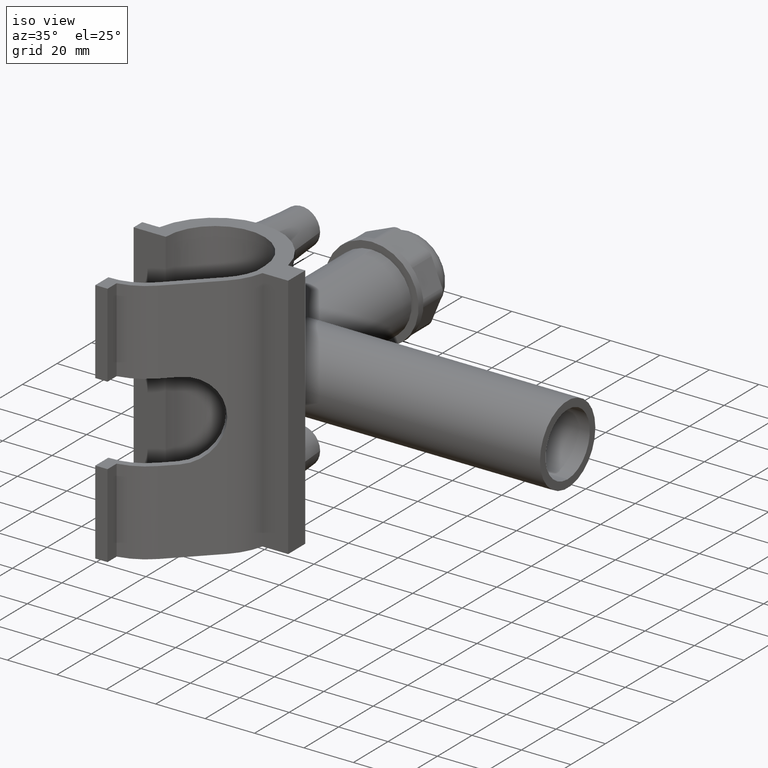
[diagram: clean part render]
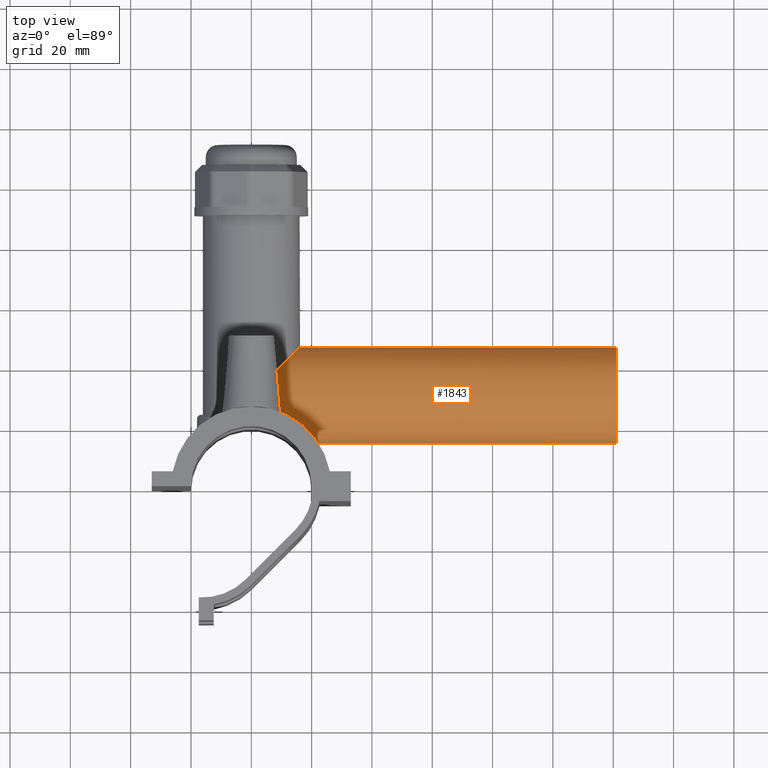
[diagram: tour spotlight — one face highlighted and labeled with its STEP entity id]
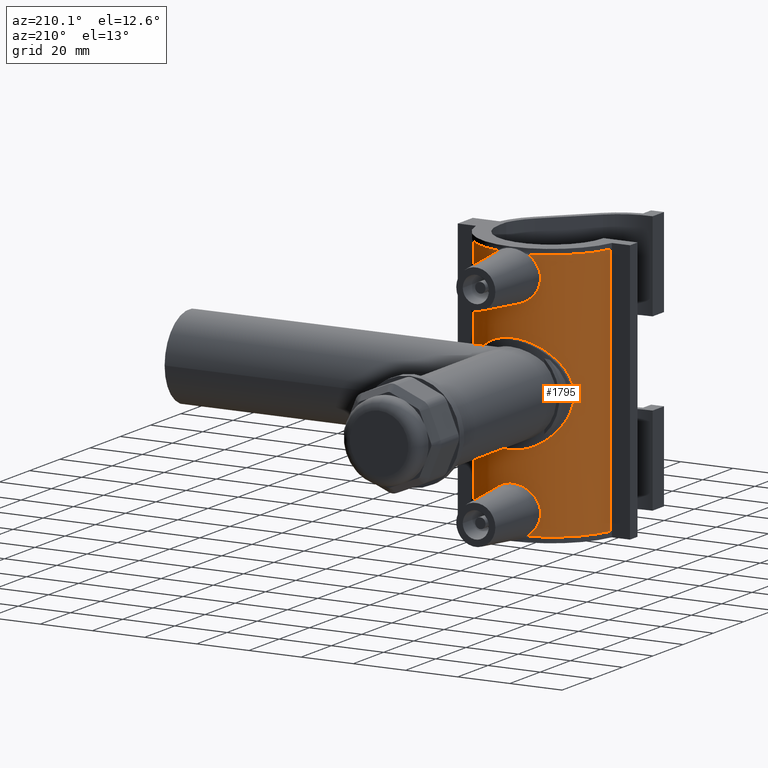
[diagram: tour spotlight — one face highlighted and labeled with its STEP entity id]
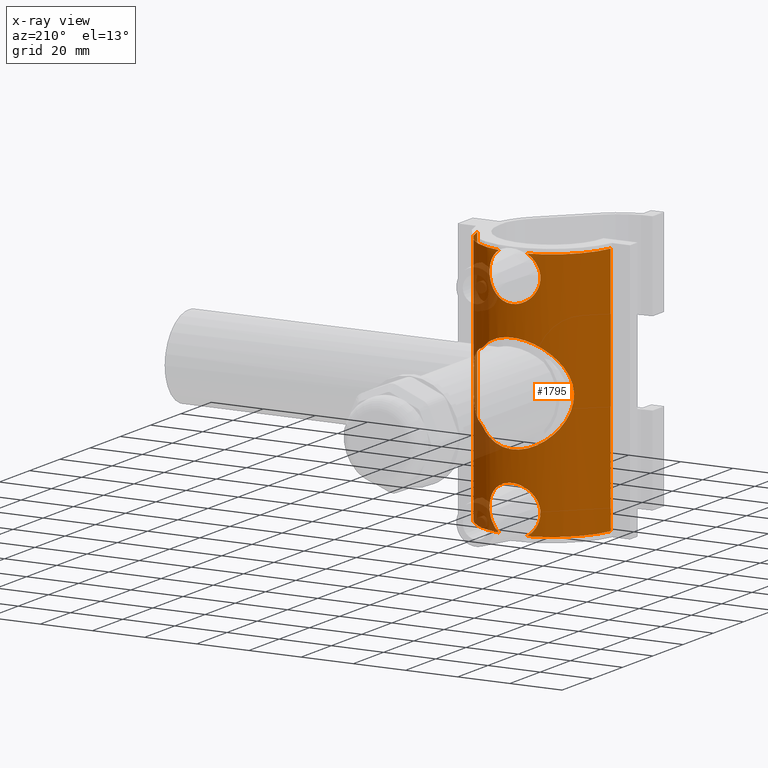
[diagram: x-ray of the same camera — body ghosted, this tour face saturated]
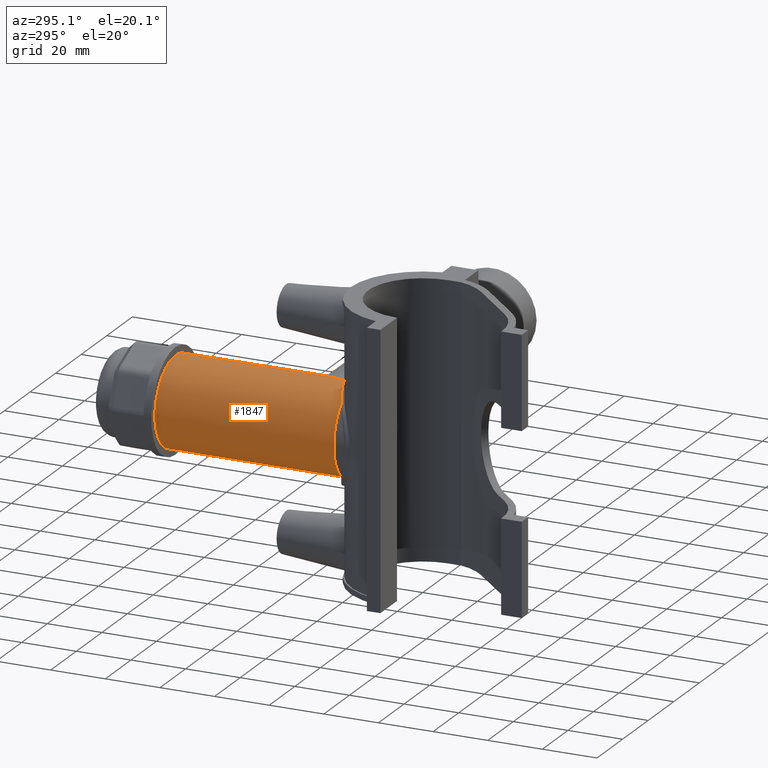
[diagram: tour spotlight — one face highlighted and labeled with its STEP entity id]
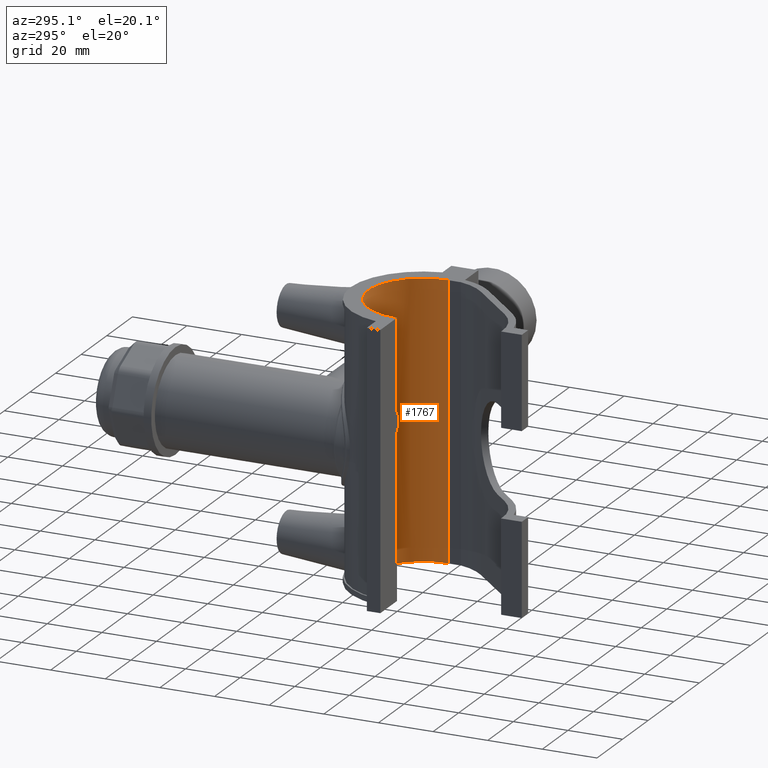
[diagram: tour spotlight — one face highlighted and labeled with its STEP entity id]
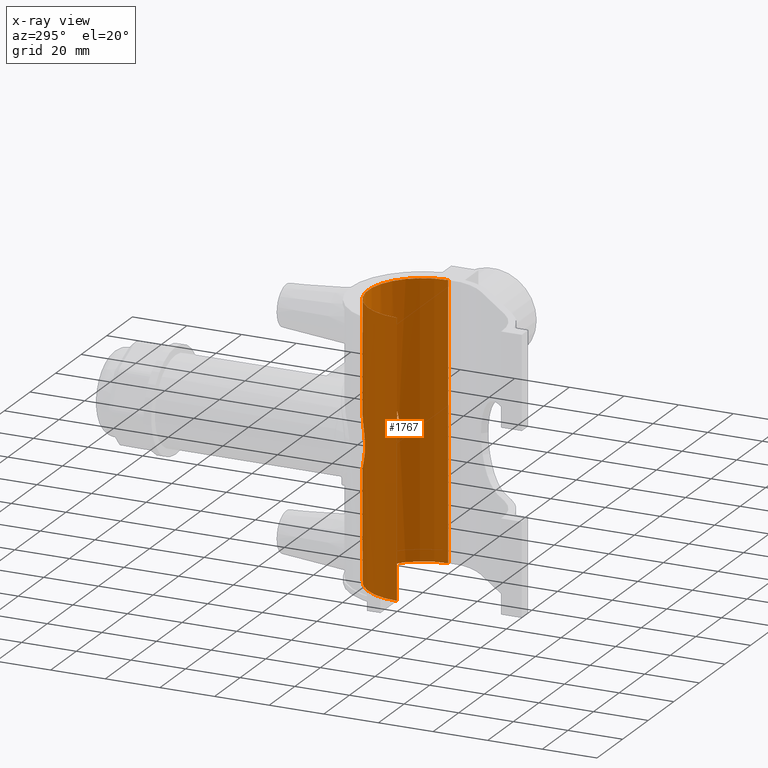
[diagram: x-ray of the same camera — body ghosted, this tour face saturated]
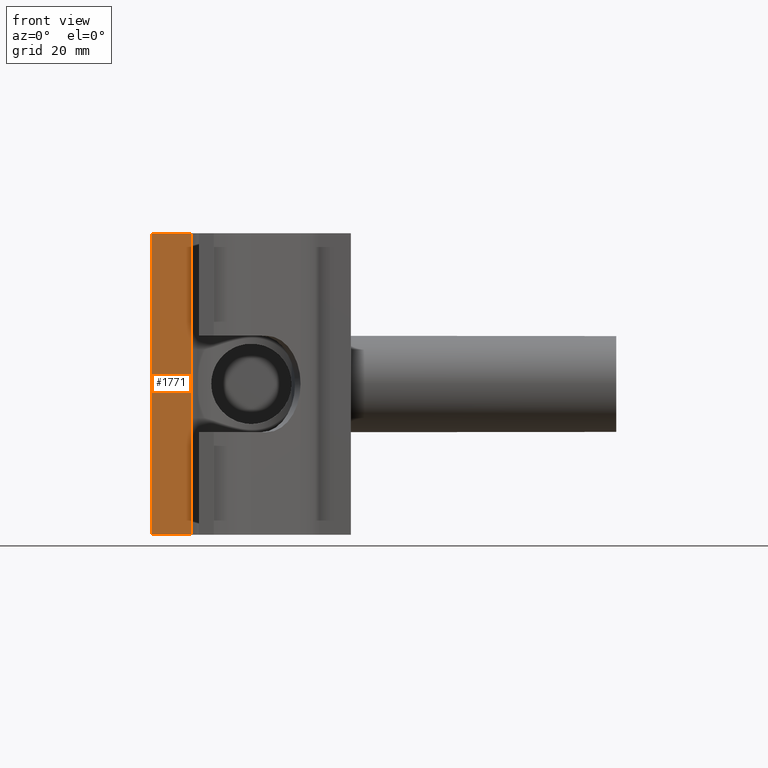
[diagram: tour spotlight — one face highlighted and labeled with its STEP entity id]
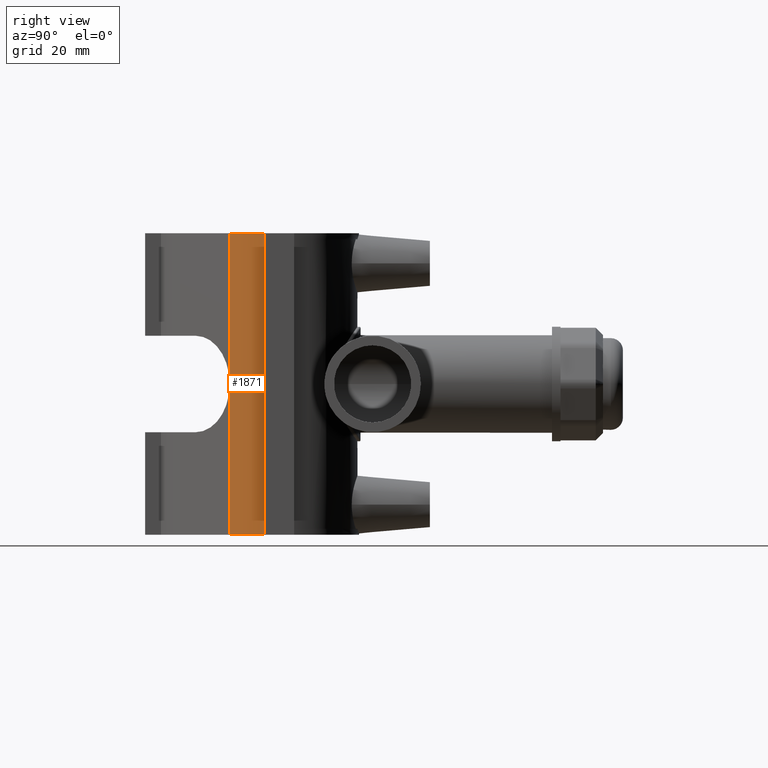
[diagram: tour spotlight — one face highlighted and labeled with its STEP entity id]
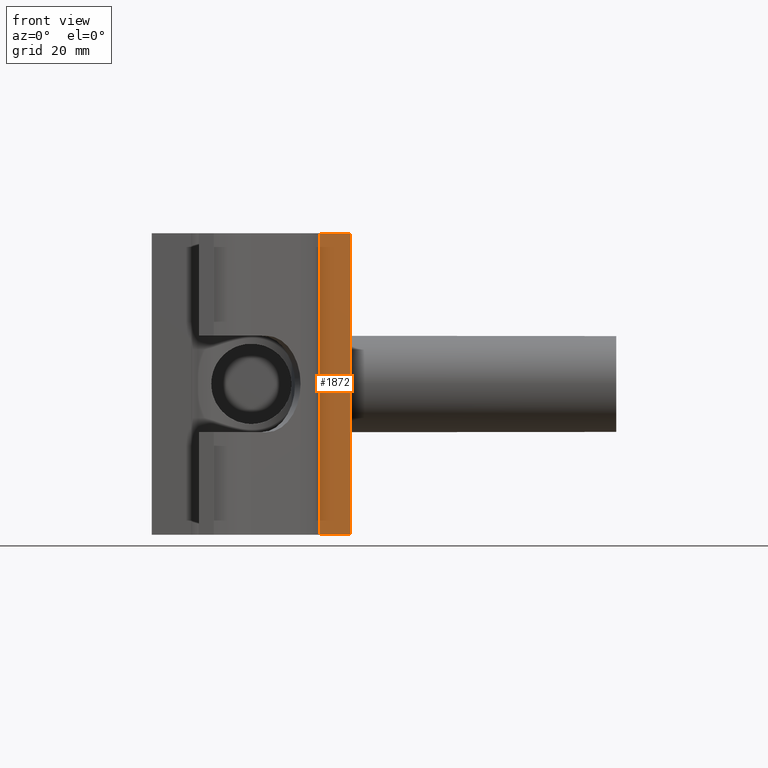
[diagram: tour spotlight — one face highlighted and labeled with its STEP entity id]
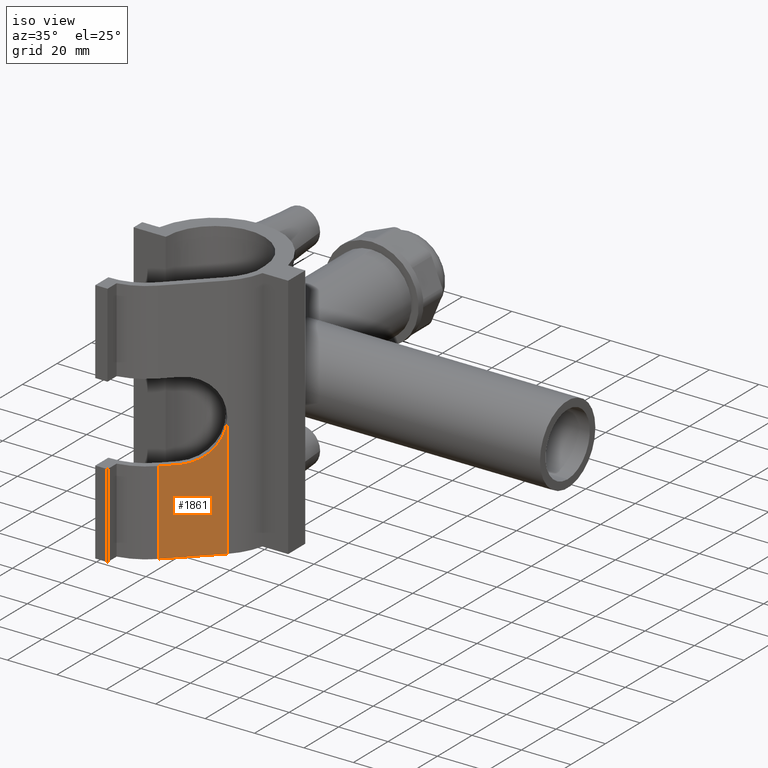
[diagram: tour spotlight — one face highlighted and labeled with its STEP entity id]
A machine part: a face-by-face anatomy tour. The part has 111 B-rep faces; the first image is the clean iso view, then the 8 largest visible faces are spotlighted one at a time (largest first), each with its STEP entity span.

Face 1 — top view, entity #1843. In plain terms, the highlighted cylindrical surface (bore or boss wall) has radius 16 mm, axis along (1, 0, 0).
Definition (entity closure, byte-faithful):
#60=FACE_BOUND('',#410,.T.);
#72=B_SPLINE_CURVE_WITH_KNOTS('',3,(#2896,#2897,#2898,#2899,#2900,#2901),
 .UNSPECIFIED.,.F.,.F.,(4,2,4),(1.22649110331706,1.60105379958077,1.91254538040851),
 .UNSPECIFIED.);
#74=B_SPLINE_CURVE_WITH_KNOTS('',3,(#2922,#2923,#2924,#2925,#2926,#2927),
 .UNSPECIFIED.,.F.,.F.,(4,2,4),(6.19156453026611,6.50305610824224,6.87761880450595),
 .UNSPECIFIED.);
#80=B_SPLINE_CURVE_WITH_KNOTS('',3,(#3085,#3086,#3087,#3088,#3089,#3090,
#3091,#3092),.UNSPECIFIED.,.F.,.F.,(4,2,2,4),(-0.101763689461477,-0.0668826564076147,
-0.0327233452909565,0.),.UNSPECIFIED.);
#82=B_SPLINE_CURVE_WITH_KNOTS('',3,(#3112,#3113,#3114,#3115,#3116,#3117,
#3118,#3119),.UNSPECIFIED.,.F.,.F.,(4,2,2,4),(-0.128288719826313,-0.0839112690709592,
-0.0378421517920636,0.),.UNSPECIFIED.);
#83=B_SPLINE_CURVE_WITH_KNOTS('',3,(#3122,#3123,#3124,#3125),
 .UNSPECIFIED.,.F.,.F.,(4,4),(6.04444653221006,6.21558799602485),
 .UNSPECIFIED.);
#85=B_SPLINE_CURVE_WITH_KNOTS('',3,(#3181,#3182,#3183,#3184),
 .UNSPECIFIED.,.F.,.F.,(4,4),(9.50243284092839,9.67357430533297),
 .UNSPECIFIED.);
#86=B_SPLINE_CURVE_WITH_KNOTS('',3,(#3186,#3187,#3188,#3189,#3190,#3191,
#3192,#3193,#3194,#3195,#3196,#3197,#3198,#3199,#3200,#3201,#3202,#3203,
#3204,#3205,#3206,#3207),.UNSPECIFIED.,.F.,.F.,(4,2,2,2,2,2,2,2,2,2,4),
(2.12082042803279,2.35346074102009,2.65535919355692,2.95725764609376,3.41558880987842,
3.87391997366308,4.33225113744775,4.79058230123241,5.09248075376924,5.39437920630608,
5.62701951929338),.UNSPECIFIED.);
#87=B_SPLINE_CURVE_WITH_KNOTS('',3,(#3438,#3439,#3440,#3441,#3442,#3443,
#3444,#3445,#3446,#3447,#3448,#3449,#3450,#3451,#3452,#3453,#3454,#3455,
#3456,#3457,#3458,#3459,#3460,#3461,#3462,#3463,#3464,#3465,#3466,#3467,
#3468,#3469,#3470,#3471,#3472,#3473,#3474,#3475,#3476,#3477,#3478,#3479,
#3480,#3481,#3482,#3483,#3484,#3485,#3486,#3487,#3488,#3489,#3490,#3491,
#3492,#3493,#3494,#3495,#3496),.UNSPECIFIED.,.F.,.F.,(4,2,2,2,2,2,2,2,2,
2,2,2,2,2,2,2,2,2,2,2,2,2,2,2,3,2,2,2,4),(-6.63962955634365,-6.43484900381278,
-6.22416148042396,-6.11881771872954,-6.01347395703513,-5.90813019534072,
-5.8027864336463,-5.59209891025748,-5.17072386347983,-4.74934881670218,
-4.32797376992453,-3.99766457207279,-3.66735537422105,-3.33704617636931,
-3.00673697851757,-2.67642778066583,-2.34611858281409,-2.01580938496235,
-1.68550018711061,-1.26412514033296,-0.842750093555305,-0.421375046777653,
-0.210687523388826,-0.105343761694412,0.,0.105343761694413,0.210687523388826,
0.421375046777652,0.626155599308527),.UNSPECIFIED.);
#148=CIRCLE('',#2023,16.);
#190=CYLINDRICAL_SURFACE('',#2025,16.);
#280=FACE_OUTER_BOUND('',#409,.T.);
#409=EDGE_LOOP('',(#1535,#1536,#1537,#1538,#1539,#1540,#1541,#1542));
#410=EDGE_LOOP('',(#1543));
#782=VERTEX_POINT('',#2894);
#783=VERTEX_POINT('',#2895);
#784=VERTEX_POINT('',#2902);
#785=VERTEX_POINT('',#2921);
#792=VERTEX_POINT('',#3084);
#793=VERTEX_POINT('',#3093);
#794=VERTEX_POINT('',#3121);
#795=VERTEX_POINT('',#3126);
#865=VERTEX_POINT('',#3433);
#974=EDGE_CURVE('',#782,#783,#72,.T.);
#976=EDGE_CURVE('',#784,#785,#74,.T.);
#984=EDGE_CURVE('',#783,#792,#80,.T.);
#986=EDGE_CURVE('',#793,#784,#82,.T.);
#987=EDGE_CURVE('',#792,#794,#83,.T.);
#989=EDGE_CURVE('',#795,#793,#85,.T.);
#990=EDGE_CURVE('',#794,#795,#86,.T.);
#1100=EDGE_CURVE('',#865,#865,#148,.T.);
#1102=EDGE_CURVE('',#785,#782,#87,.T.);
#1535=ORIENTED_EDGE('',*,*,#974,.F.);
#1536=ORIENTED_EDGE('',*,*,#1102,.F.);
#1537=ORIENTED_EDGE('',*,*,#976,.F.);
#1538=ORIENTED_EDGE('',*,*,#986,.F.);
#1539=ORIENTED_EDGE('',*,*,#989,.F.);
#1540=ORIENTED_EDGE('',*,*,#990,.F.);
#1541=ORIENTED_EDGE('',*,*,#987,.F.);
#1542=ORIENTED_EDGE('',*,*,#984,.F.);
#1543=ORIENTED_EDGE('',*,*,#1100,.F.);
#1843=ADVANCED_FACE('',(#280,#60),#190,.T.);
#2023=AXIS2_PLACEMENT_3D('',#3434,#2462,#2463);
#2025=AXIS2_PLACEMENT_3D('',#3437,#2466,#2467);
#2462=DIRECTION('center_axis',(1.,0.,0.));
#2463=DIRECTION('ref_axis',(0.,0.,-1.));
#2466=DIRECTION('center_axis',(1.,0.,0.));
#2467=DIRECTION('ref_axis',(0.,1.,0.));
#2894=CARTESIAN_POINT('',(4.92928716651362,26.5869089889668,-15.3793572030265));
#2895=CARTESIAN_POINT('',(11.7576992829266,24.3499098030377,-14.5525358657979));
#2896=CARTESIAN_POINT('Ctrl Pts',(4.92928716042969,26.5869089608029,-15.3793571868189));
#2897=CARTESIAN_POINT('Ctrl Pts',(6.22217403010723,26.3472041250138,-15.3105741258611));
#2898=CARTESIAN_POINT('Ctrl Pts',(7.50849672137861,26.0099016822323,-15.2086721331859));
#2899=CARTESIAN_POINT('Ctrl Pts',(9.78844154864367,25.2298429057298,-14.9280611202224));
#2900=CARTESIAN_POINT('Ctrl Pts',(10.7960434014913,24.8142589870431,-14.7647300913031));
#2901=CARTESIAN_POINT('Ctrl Pts',(11.7576992858475,24.3499098048346,-14.5525358751032));
#2902=CARTESIAN_POINT('',(11.7576992588509,24.3499098172276,14.5525358790663));
#2921=CARTESIAN_POINT('',(4.92928716651364,26.5869089889668,15.3793572030265));
#2922=CARTESIAN_POINT('Ctrl Pts',(11.7576992594362,24.3499098175877,14.552535880931));
#2923=CARTESIAN_POINT('Ctrl Pts',(10.7960433830471,24.8142589946629,14.7647300942932));
#2924=CARTESIAN_POINT('Ctrl Pts',(9.78844153916698,25.2298429089721,14.9280611213888));
#2925=CARTESIAN_POINT('Ctrl Pts',(7.50849672137862,26.0099016822323,15.2086721331859));
#2926=CARTESIAN_POINT('Ctrl Pts',(6.22217403010723,26.3472041250138,15.3105741258611));
#2927=CARTESIAN_POINT('Ctrl Pts',(4.92928716042971,26.5869089608029,15.3793571868189));
#3084=CARTESIAN_POINT('',(12.6462683082268,23.5886504575678,-14.1799822959372));
#3085=CARTESIAN_POINT('Ctrl Pts',(11.7576992858475,24.3499098048346,-14.5525358751032));
#3086=CARTESIAN_POINT('Ctrl Pts',(11.8864536098341,24.2877389509817,-14.5241255836474));
#3087=CARTESIAN_POINT('Ctrl Pts',(12.0111021628664,24.2118235636421,-14.4889294529334));
#3088=CARTESIAN_POINT('Ctrl Pts',(12.2367912225146,24.0478399265202,-14.4109521430207));
#3089=CARTESIAN_POINT('Ctrl Pts',(12.3429610271779,23.9566410917969,-14.3667276643776));
#3090=CARTESIAN_POINT('Ctrl Pts',(12.5250308112112,23.7665610151319,-14.2719361093639));
#3091=CARTESIAN_POINT('Ctrl Pts',(12.5959917084098,23.6744393311758,-14.2248209522095));
#3092=CARTESIAN_POINT('Ctrl Pts',(12.6462683029322,23.5886504609654,-14.1799822993631));
#3093=CARTESIAN_POINT('',(12.6462683032206,23.5886504607804,14.1799822991766));
#3112=CARTESIAN_POINT('Ctrl Pts',(12.6462683029322,23.5886504609654,14.1799822993631));
#3113=CARTESIAN_POINT('Ctrl Pts',(12.5927648079547,23.6799455144596,14.2276988294932));
#3114=CARTESIAN_POINT('Ctrl Pts',(12.5155310999506,23.7788421101244,14.2782074374878));
#3115=CARTESIAN_POINT('Ctrl Pts',(12.3163285355255,23.9814923054892,14.3789372525777));
#3116=CARTESIAN_POINT('Ctrl Pts',(12.2000079364223,24.0779834444658,14.4254790928481));
#3117=CARTESIAN_POINT('Ctrl Pts',(11.977234681578,24.2321115208471,14.4983308129236));
#3118=CARTESIAN_POINT('Ctrl Pts',(11.8691124312567,24.2961123876707,14.5279520033684));
#3119=CARTESIAN_POINT('Ctrl Pts',(11.7576992528176,24.3499098207836,14.5525358823914));
#3121=CARTESIAN_POINT('',(13.4895821755293,22.2268120235369,-13.3802530891476));
#3122=CARTESIAN_POINT('Ctrl Pts',(12.6462683059379,23.5886504558367,-14.1799822966826));
#3123=CARTESIAN_POINT('Ctrl Pts',(12.9211547304316,23.1196012688981,-13.9348277256066));
#3124=CARTESIAN_POINT('Ctrl Pts',(13.2046475263963,22.6649252127728,-13.667515918821));
#3125=CARTESIAN_POINT('Ctrl Pts',(13.4895821755293,22.2268120235369,-13.3802530891476));
#3126=CARTESIAN_POINT('',(13.4895821755293,22.2268120235369,13.3802530891476));
#3181=CARTESIAN_POINT('Ctrl Pts',(13.4895821755293,22.2268120235369,13.3802530891476));
#3182=CARTESIAN_POINT('Ctrl Pts',(13.2046476520951,22.6649250194994,13.6675157920951));
#3183=CARTESIAN_POINT('Ctrl Pts',(12.9211548445062,23.1196010740468,13.9348276239693));
#3184=CARTESIAN_POINT('Ctrl Pts',(12.6462683030959,23.5886504606861,14.1799822992171));
#3186=CARTESIAN_POINT('Ctrl Pts',(13.4895821755293,22.2268120235369,-13.3802530891476));
#3187=CARTESIAN_POINT('Ctrl Pts',(14.1332986526868,21.8361367297897,-13.1240944225687));
#3188=CARTESIAN_POINT('Ctrl Pts',(14.7413268698414,21.4286197933354,-12.8323143468754));
#3189=CARTESIAN_POINT('Ctrl Pts',(16.0446331846316,20.4792351948452,-12.074120367694));
#3190=CARTESIAN_POINT('Ctrl Pts',(16.7891163340579,19.8724248978905,-11.530086396339));
#3191=CARTESIAN_POINT('Ctrl Pts',(18.1051620236151,18.6812952585004,-10.2476995676938));
#3192=CARTESIAN_POINT('Ctrl Pts',(18.6774017136537,18.0997638198825,-9.50745442511447));
#3193=CARTESIAN_POINT('Ctrl Pts',(19.8173073883927,16.8613192573689,-7.61311378879392));
#3194=CARTESIAN_POINT('Ctrl Pts',(20.3704252535033,16.1674874741771,-6.20715615017534));
#3195=CARTESIAN_POINT('Ctrl Pts',(21.0765923438519,15.2354539849992,-3.16407688769206));
#3196=CARTESIAN_POINT('Ctrl Pts',(21.2367605815953,15.,-1.52777054594888));
#3197=CARTESIAN_POINT('Ctrl Pts',(21.2367605815953,15.,1.52777054594887));
#3198=CARTESIAN_POINT('Ctrl Pts',(21.0765923438519,15.2354539849992,3.16407688769205));
#3199=CARTESIAN_POINT('Ctrl Pts',(20.3704252535033,16.1674874741771,6.20715615017534));
#3200=CARTESIAN_POINT('Ctrl Pts',(19.8173073883927,16.8613192573689,7.61311378879392));
#3201=CARTESIAN_POINT('Ctrl Pts',(18.6774017136537,18.0997638198825,9.50745442511447));
#3202=CARTESIAN_POINT('Ctrl Pts',(18.1051620236151,18.6812952585004,10.2476995676938));
#3203=CARTESIAN_POINT('Ctrl Pts',(16.7891163340579,19.8724248978905,11.530086396339));
#3204=CARTESIAN_POINT('Ctrl Pts',(16.0446331846316,20.4792351948452,12.0741203676939));
#3205=CARTESIAN_POINT('Ctrl Pts',(14.7413268698413,21.4286197933355,12.8323143468754));
#3206=CARTESIAN_POINT('Ctrl Pts',(14.1332986526868,21.8361367297897,13.1240944225687));
#3207=CARTESIAN_POINT('Ctrl Pts',(13.4895821755293,22.2268120235369,13.3802530891476));
#3433=CARTESIAN_POINT('',(121.,47.,0.));
#3434=CARTESIAN_POINT('Origin',(121.,31.,0.));
#3437=CARTESIAN_POINT('Origin',(60.5,31.,0.));
#3438=CARTESIAN_POINT('Ctrl Pts',(4.92928718298624,26.5869090047504,15.3793571994296));
#3439=CARTESIAN_POINT('Ctrl Pts',(4.52615241067945,27.0371981712976,15.5085672203934));
#3440=CARTESIAN_POINT('Ctrl Pts',(4.13822093923471,27.4829457369652,15.6152762206441));
#3441=CARTESIAN_POINT('Ctrl Pts',(3.40217938597088,28.3878052828285,15.7922464256432));
#3442=CARTESIAN_POINT('Ctrl Pts',(3.05807471379863,28.8374336439117,15.8606146792677));
#3443=CARTESIAN_POINT('Ctrl Pts',(2.6182277017766,29.5615247834086,15.9370514941509));
#3444=CARTESIAN_POINT('Ctrl Pts',(2.48527459346471,29.8095807206674,15.9579813658507));
#3445=CARTESIAN_POINT('Ctrl Pts',(2.27534481876414,30.3537110315909,15.9892642558429));
#3446=CARTESIAN_POINT('Ctrl Pts',(2.19601912559956,30.6488541276853,16.));
#3447=CARTESIAN_POINT('Ctrl Pts',(2.19601912559956,31.3511458723147,16.));
#3448=CARTESIAN_POINT('Ctrl Pts',(2.27534481876413,31.6462889684091,15.9892642558429));
#3449=CARTESIAN_POINT('Ctrl Pts',(2.48527459346471,32.1904192793326,15.9579813658507));
#3450=CARTESIAN_POINT('Ctrl Pts',(2.61822770177659,32.4384752165914,15.9370514941509));
#3451=CARTESIAN_POINT('Ctrl Pts',(3.05807471379862,33.1625663560883,15.8606146792677));
#3452=CARTESIAN_POINT('Ctrl Pts',(3.40217938597089,33.6121947171715,15.7922464256432));
#3453=CARTESIAN_POINT('Ctrl Pts',(4.52193886418211,34.9887814715979,15.5230169731346));
#3454=CARTESIAN_POINT('Ctrl Pts',(5.36915605535135,35.9107613854618,15.2616213285798));
#3455=CARTESIAN_POINT('Ctrl Pts',(7.14010774651928,37.8021238639034,14.5177057144414));
#3456=CARTESIAN_POINT('Ctrl Pts',(8.06016742514383,38.7585525074125,14.0362081823946));
#3457=CARTESIAN_POINT('Ctrl Pts',(9.85185219442823,40.6066554340991,12.8422135188152));
#3458=CARTESIAN_POINT('Ctrl Pts',(10.7239240727521,41.4978196182368,12.1295973797327));
#3459=CARTESIAN_POINT('Ctrl Pts',(12.1527088282794,42.9532708171545,10.674146180815));
#3460=CARTESIAN_POINT('Ctrl Pts',(12.7705839913807,43.5807068556988,9.93651712663098));
#3461=CARTESIAN_POINT('Ctrl Pts',(13.8987017109824,44.7244409270884,8.28542569310502));
#3462=CARTESIAN_POINT('Ctrl Pts',(14.4088266901925,45.2406381707588,7.3718131673801));
#3463=CARTESIAN_POINT('Ctrl Pts',(15.2524759777973,46.0936911374443,5.41478622565506));
#3464=CARTESIAN_POINT('Ctrl Pts',(15.5868200887819,46.4313787847106,4.36885520921322));
#3465=CARTESIAN_POINT('Ctrl Pts',(16.0356740315408,46.8846256601391,2.21201598008659));
#3466=CARTESIAN_POINT('Ctrl Pts',(16.15,47.,1.1010306595058));
#3467=CARTESIAN_POINT('Ctrl Pts',(16.15,47.,-1.1010306595058));
#3468=CARTESIAN_POINT('Ctrl Pts',(16.0356740315408,46.8846256601391,-2.21201598008659));
#3469=CARTESIAN_POINT('Ctrl Pts',(15.5868200887819,46.4313787847106,-4.36885520921323));
#3470=CARTESIAN_POINT('Ctrl Pts',(15.2524759777972,46.0936911374442,-5.41478622565506));
#3471=CARTESIAN_POINT('Ctrl Pts',(14.4088266901925,45.2406381707588,-7.37181316738011));
#3472=CARTESIAN_POINT('Ctrl Pts',(13.8987017109824,44.7244409270884,-8.28542569310503));
#3473=CARTESIAN_POINT('Ctrl Pts',(12.7705839913807,43.5807068556987,-9.93651712663099));
#3474=CARTESIAN_POINT('Ctrl Pts',(12.1527088282794,42.9532708171545,-10.674146180815));
#3475=CARTESIAN_POINT('Ctrl Pts',(10.723924072752,41.4978196182368,-12.1295973797327));
#3476=CARTESIAN_POINT('Ctrl Pts',(9.8518521944282,40.6066554340991,-12.8422135188152));
#3477=CARTESIAN_POINT('Ctrl Pts',(8.0601674251438,38.7585525074125,-14.0362081823946));
#3478=CARTESIAN_POINT('Ctrl Pts',(7.14010774651926,37.8021238639034,-14.5177057144414));
#3479=CARTESIAN_POINT('Ctrl Pts',(5.36915605535133,35.9107613854618,-15.2616213285798));
#3480=CARTESIAN_POINT('Ctrl Pts',(4.52193886418208,34.9887814715979,-15.5230169731346));
#3481=CARTESIAN_POINT('Ctrl Pts',(3.40217938597086,33.6121947171715,-15.7922464256432));
#3482=CARTESIAN_POINT('Ctrl Pts',(3.05807471379858,33.1625663560883,-15.8606146792677));
#3483=CARTESIAN_POINT('Ctrl Pts',(2.61822770177654,32.4384752165914,-15.9370514941509));
#3484=CARTESIAN_POINT('Ctrl Pts',(2.48527459346466,32.1904192793326,-15.9579813658507));
#3485=CARTESIAN_POINT('Ctrl Pts',(2.27534481876408,31.6462889684091,-15.9892642558429));
#3486=CARTESIAN_POINT('Ctrl Pts',(2.19601912559952,31.3511458723147,-16.));
#3487=CARTESIAN_POINT('Ctrl Pts',(2.19601912559952,31.,-16.));
#3488=CARTESIAN_POINT('Ctrl Pts',(2.19601912559952,30.6488541276853,-16.));
#3489=CARTESIAN_POINT('Ctrl Pts',(2.27534481876408,30.3537110315909,-15.9892642558429));
#3490=CARTESIAN_POINT('Ctrl Pts',(2.48527459346466,29.8095807206674,-15.9579813658507));
#3491=CARTESIAN_POINT('Ctrl Pts',(2.61822770177655,29.5615247834086,-15.9370514941509));
#3492=CARTESIAN_POINT('Ctrl Pts',(3.05807471379859,28.8374336439117,-15.8606146792677));
#3493=CARTESIAN_POINT('Ctrl Pts',(3.40217938597086,28.3878052828285,-15.7922464256432));
#3494=CARTESIAN_POINT('Ctrl Pts',(4.1382209392347,27.4829457369652,-15.6152762206441));
#3495=CARTESIAN_POINT('Ctrl Pts',(4.52615241067944,27.0371981712976,-15.5085672203934));
#3496=CARTESIAN_POINT('Ctrl Pts',(4.92928718298624,26.5869090047504,-15.3793571994296));

Face 2 — auxiliary view, entity #1795. An x-ray twin of the same camera follows (body ghosted, this face saturated) — the face is partly hidden behind the body. In plain terms, the highlighted cylindrical surface (partial cylindrical patch) has radius 26 mm, axis along (0, 0, 1).
Definition (entity closure, byte-faithful):
#53=FACE_BOUND('',#355,.T.);
#67=B_SPLINE_CURVE_WITH_KNOTS('',3,(#2772,#2773,#2774,#2775,#2776,#2777,
#2778,#2779),.UNSPECIFIED.,.F.,.F.,(4,2,2,4),(2.94996046614777,3.31966211596086,
3.68936376577394,3.87630209367673),.UNSPECIFIED.);
#68=B_SPLINE_CURVE_WITH_KNOTS('',3,(#2780,#2781,#2782,#2783,#2784,#2785,
#2786,#2787,#2788,#2789,#2790,#2791,#2792,#2793,#2794,#2795,#2796,#2797,
#2798,#2799,#2800,#2801,#2802,#2803,#2804),.UNSPECIFIED.,.F.,.F.,(4,2,2,
3,2,2,2,2,2,2,2,4),(4.97357930476659,5.16051763266937,5.53021928248246,
5.89992093229554,6.26962258210863,6.63932423192171,7.00711269864557,7.37490116536943,
7.74268963209329,8.11047809881715,8.48017974863023,8.84988139844332),
 .UNSPECIFIED.);
#70=B_SPLINE_CURVE_WITH_KNOTS('',3,(#2848,#2849,#2850,#2851,#2852,#2853,
#2854,#2855,#2856,#2857,#2858,#2859,#2860,#2861,#2862,#2863,#2864,#2865,
#2866,#2867,#2868,#2869,#2870,#2871),.UNSPECIFIED.,.F.,.F.,(4,2,2,2,2,2,
2,2,2,2,2,4),(0.,0.369701649813085,0.739403299626169,1.10719176635003,1.47498023307389,
1.84276869979774,2.2105571665216,2.58025881633469,2.94996046614777,3.31966211596086,
3.68936376577394,3.87630209367673),.UNSPECIFIED.);
#71=B_SPLINE_CURVE_WITH_KNOTS('',3,(#2872,#2873,#2874,#2875,#2876,#2877,
#2878,#2879),.UNSPECIFIED.,.F.,.F.,(4,2,2,4),(4.97357930476659,5.16051763266937,
5.53021928248246,5.89992093229554),.UNSPECIFIED.);
#84=B_SPLINE_CURVE_WITH_KNOTS('',3,(#3127,#3128,#3129,#3130,#3131,#3132,
#3133,#3134,#3135,#3136,#3137,#3138,#3139,#3140,#3141,#3142,#3143,#3144,
#3145,#3146,#3147,#3148,#3149,#3150,#3151,#3152,#3153,#3154,#3155,#3156,
#3157,#3158,#3159,#3160,#3161,#3162,#3163,#3164,#3165,#3166,#3167,#3168,
#3169,#3170,#3171,#3172,#3173,#3174,#3175,#3176,#3177,#3178,#3179,#3180),
 .UNSPECIFIED.,.F.,.F.,(4,2,2,2,2,2,2,2,2,2,2,2,2,2,2,2,2,2,2,2,2,2,2,2,
2,2,4),(1.51398294115325,1.52238236142566,1.8960817078233,2.26978105422094,
2.64348040061858,3.01717974701623,3.39087909341387,3.76457843981151,4.13827778620916,
4.5119771326068,4.89257272296321,5.27316831331963,5.65376390367604,6.03435949403246,
6.41495508438887,6.79555067474528,7.1761462651017,7.55674185545811,7.93044120185575,
8.3041405482534,8.67783989465104,9.05153924104868,9.42523858744633,9.79893793384397,
10.1726372802416,10.5463366266393,10.5547360469117),.UNSPECIFIED.);
#86=B_SPLINE_CURVE_WITH_KNOTS('',3,(#3186,#3187,#3188,#3189,#3190,#3191,
#3192,#3193,#3194,#3195,#3196,#3197,#3198,#3199,#3200,#3201,#3202,#3203,
#3204,#3205,#3206,#3207),.UNSPECIFIED.,.F.,.F.,(4,2,2,2,2,2,2,2,2,2,4),
(2.12082042803279,2.35346074102009,2.65535919355692,2.95725764609376,3.41558880987842,
3.87391997366308,4.33225113744775,4.79058230123241,5.09248075376924,5.39437920630608,
5.62701951929338),.UNSPECIFIED.);
#105=CIRCLE('',#1916,26.);
#106=CIRCLE('',#1918,26.);
#109=CIRCLE('',#1925,26.);
#110=CIRCLE('',#1927,26.);
#179=CYLINDRICAL_SURFACE('',#1930,26.);
#232=FACE_OUTER_BOUND('',#354,.T.);
#354=EDGE_LOOP('',(#1304,#1305,#1306,#1307,#1308,#1309,#1310,#1311,#1312,
#1313));
#355=EDGE_LOOP('',(#1314,#1315));
#468=LINE('',#2813,#613);
#474=LINE('',#2885,#619);
#613=VECTOR('',#2167,96.);
#619=VECTOR('',#2191,96.);
#764=VERTEX_POINT('',#2751);
#767=VERTEX_POINT('',#2767);
#768=VERTEX_POINT('',#2771);
#771=VERTEX_POINT('',#2810);
#772=VERTEX_POINT('',#2812);
#774=VERTEX_POINT('',#2823);
#775=VERTEX_POINT('',#2827);
#778=VERTEX_POINT('',#2843);
#779=VERTEX_POINT('',#2847);
#781=VERTEX_POINT('',#2883);
#794=VERTEX_POINT('',#3121);
#795=VERTEX_POINT('',#3126);
#949=EDGE_CURVE('',#768,#767,#67,.T.);
#950=EDGE_CURVE('',#764,#768,#68,.T.);
#954=EDGE_CURVE('',#771,#772,#468,.T.);
#959=EDGE_CURVE('',#771,#764,#105,.T.);
#961=EDGE_CURVE('',#767,#774,#106,.T.);
#965=EDGE_CURVE('',#779,#778,#70,.T.);
#966=EDGE_CURVE('',#775,#779,#71,.T.);
#969=EDGE_CURVE('',#774,#781,#474,.T.);
#972=EDGE_CURVE('',#781,#775,#109,.T.);
#973=EDGE_CURVE('',#778,#772,#110,.T.);
#988=EDGE_CURVE('',#795,#794,#84,.T.);
#990=EDGE_CURVE('',#794,#795,#86,.T.);
#1304=ORIENTED_EDGE('',*,*,#973,.T.);
#1305=ORIENTED_EDGE('',*,*,#954,.F.);
#1306=ORIENTED_EDGE('',*,*,#959,.T.);
#1307=ORIENTED_EDGE('',*,*,#950,.T.);
#1308=ORIENTED_EDGE('',*,*,#949,.T.);
#1309=ORIENTED_EDGE('',*,*,#961,.T.);
#1310=ORIENTED_EDGE('',*,*,#969,.T.);
#1311=ORIENTED_EDGE('',*,*,#972,.T.);
#1312=ORIENTED_EDGE('',*,*,#966,.T.);
#1313=ORIENTED_EDGE('',*,*,#965,.T.);
#1314=ORIENTED_EDGE('',*,*,#990,.T.);
#1315=ORIENTED_EDGE('',*,*,#988,.T.);
#1795=ADVANCED_FACE('',(#232,#53),#179,.T.);
#1916=AXIS2_PLACEMENT_3D('',#2821,#2178,#2179);
#1918=AXIS2_PLACEMENT_3D('',#2825,#2183,#2184);
#1925=AXIS2_PLACEMENT_3D('',#2890,#2200,#2201);
#1927=AXIS2_PLACEMENT_3D('',#2892,#2204,#2205);
#1930=AXIS2_PLACEMENT_3D('',#3185,#2212,#2213);
#2167=DIRECTION('',(0.,0.,-1.));
#2178=DIRECTION('center_axis',(0.,0.,-1.));
#2179=DIRECTION('ref_axis',(1.,0.,0.));
#2183=DIRECTION('center_axis',(0.,0.,-1.));
#2184=DIRECTION('ref_axis',(1.,0.,0.));
#2191=DIRECTION('',(0.,0.,-1.));
#2200=DIRECTION('center_axis',(0.,0.,1.));
#2201=DIRECTION('ref_axis',(1.,0.,0.));
#2204=DIRECTION('center_axis',(0.,0.,1.));
#2205=DIRECTION('ref_axis',(1.,0.,0.));
#2212=DIRECTION('center_axis',(0.,0.,1.));
#2213=DIRECTION('ref_axis',(1.,0.,0.));
#2751=CARTESIAN_POINT('',(-5.3951674336109,25.4340749460896,48.));
#2767=CARTESIAN_POINT('',(5.3951674336109,25.4340749460896,48.));
#2771=CARTESIAN_POINT('',(9.76630249195255,24.096043983104,40.));
#2772=CARTESIAN_POINT('Ctrl Pts',(9.76630249195255,24.096043983104,40.));
#2773=CARTESIAN_POINT('Ctrl Pts',(9.76630249195255,24.096043983104,41.2323388327103));
#2774=CARTESIAN_POINT('Ctrl Pts',(9.50996216014971,24.2044189053942,42.5340450094426));
#2775=CARTESIAN_POINT('Ctrl Pts',(8.49387395753575,24.5794092044208,44.9067073127729));
#2776=CARTESIAN_POINT('Ctrl Pts',(7.73484343137409,24.8390807172828,45.9790627512517));
#2777=CARTESIAN_POINT('Ctrl Pts',(6.42972331783999,25.1965310724773,47.2485693515817));
#2778=CARTESIAN_POINT('Ctrl Pts',(5.93451184178679,25.3196672708485,47.6483411838531));
#2779=CARTESIAN_POINT('Ctrl Pts',(5.3951674336109,25.4340749460896,48.));
#2780=CARTESIAN_POINT('Ctrl Pts',(-5.3951674336109,25.4340749460896,48.));
#2781=CARTESIAN_POINT('Ctrl Pts',(-5.93451184178679,25.3196672708485,47.6483411838531));
#2782=CARTESIAN_POINT('Ctrl Pts',(-6.42972331783999,25.1965310724773,47.2485693515817));
#2783=CARTESIAN_POINT('Ctrl Pts',(-7.73484343137409,24.8390807172828,45.9790627512517));
#2784=CARTESIAN_POINT('Ctrl Pts',(-8.49387395753575,24.5794092044208,44.9067073127729));
#2785=CARTESIAN_POINT('Ctrl Pts',(-9.50996216014971,24.2044189053942,42.5340450094426));
#2786=CARTESIAN_POINT('Ctrl Pts',(-9.76630249195255,24.096043983104,41.2323388327103));
#2787=CARTESIAN_POINT('Ctrl Pts',(-9.76630249195255,24.096043983104,40.));
#2788=CARTESIAN_POINT('Ctrl Pts',(-9.76630249195255,24.096043983104,38.7676611672897));
#2789=CARTESIAN_POINT('Ctrl Pts',(-9.50996216014971,24.2044189053943,37.4659549905574));
#2790=CARTESIAN_POINT('Ctrl Pts',(-8.49387395753574,24.5794092044208,35.0932926872271));
#2791=CARTESIAN_POINT('Ctrl Pts',(-7.73484343137409,24.8390807172828,34.0209372487483));
#2792=CARTESIAN_POINT('Ctrl Pts',(-6.00569492756996,25.3126652865951,32.3389729484772));
#2793=CARTESIAN_POINT('Ctrl Pts',(-4.91758131382388,25.5592379122145,31.6109466468528));
#2794=CARTESIAN_POINT('Ctrl Pts',(-2.528128502029,25.9049380292898,30.6412987795354));
#2795=CARTESIAN_POINT('Ctrl Pts',(-1.22596155574619,26.,30.4002720753778));
#2796=CARTESIAN_POINT('Ctrl Pts',(1.22596155574619,26.,30.4002720753778));
#2797=CARTESIAN_POINT('Ctrl Pts',(2.528128502029,25.9049380292898,30.6412987795354));
#2798=CARTESIAN_POINT('Ctrl Pts',(4.91758131382388,25.5592379122145,31.6109466468528));
#2799=CARTESIAN_POINT('Ctrl Pts',(6.00569492756995,25.3126652865951,32.3389729484772));
#2800=CARTESIAN_POINT('Ctrl Pts',(7.73484343137408,24.8390807172828,34.0209372487483));
#2801=CARTESIAN_POINT('Ctrl Pts',(8.49387395753574,24.5794092044208,35.0932926872271));
#2802=CARTESIAN_POINT('Ctrl Pts',(9.50996216014971,24.2044189053942,37.4659549905574));
#2803=CARTESIAN_POINT('Ctrl Pts',(9.76630249195255,24.096043983104,38.7676611672897));
#2804=CARTESIAN_POINT('Ctrl Pts',(9.76630249195255,24.096043983104,40.));
#2810=CARTESIAN_POINT('',(-25.5147016443462,5.,48.));
#2812=CARTESIAN_POINT('',(-25.5147016443462,5.,-48.));
#2813=CARTESIAN_POINT('',(-25.5147016443462,5.,0.));
#2821=CARTESIAN_POINT('Origin',(0.,0.,48.));
#2823=CARTESIAN_POINT('',(25.5147016443462,4.99999999999999,48.));
#2825=CARTESIAN_POINT('Origin',(0.,0.,48.));
#2827=CARTESIAN_POINT('',(5.3951674336109,25.4340749460896,-48.));
#2843=CARTESIAN_POINT('',(-5.3951674336109,25.4340749460896,-48.));
#2847=CARTESIAN_POINT('',(9.76630249195255,24.096043983104,-40.));
#2848=CARTESIAN_POINT('Ctrl Pts',(9.76630249195255,24.096043983104,-40.));
#2849=CARTESIAN_POINT('Ctrl Pts',(9.76630249195255,24.096043983104,-38.7676611672897));
#2850=CARTESIAN_POINT('Ctrl Pts',(9.5099621601497,24.2044189053943,-37.4659549905574));
#2851=CARTESIAN_POINT('Ctrl Pts',(8.49387395753574,24.5794092044208,-35.0932926872271));
#2852=CARTESIAN_POINT('Ctrl Pts',(7.73484343137408,24.8390807172828,-34.0209372487483));
#2853=CARTESIAN_POINT('Ctrl Pts',(6.00569492756995,25.3126652865951,-32.3389729484772));
#2854=CARTESIAN_POINT('Ctrl Pts',(4.91758131382388,25.5592379122145,-31.6109466468528));
#2855=CARTESIAN_POINT('Ctrl Pts',(2.528128502029,25.9049380292898,-30.6412987795354));
#2856=CARTESIAN_POINT('Ctrl Pts',(1.22596155574619,26.,-30.4002720753778));
#2857=CARTESIAN_POINT('Ctrl Pts',(-1.22596155574619,26.,-30.4002720753778));
#2858=CARTESIAN_POINT('Ctrl Pts',(-2.528128502029,25.9049380292898,-30.6412987795354));
#2859=CARTESIAN_POINT('Ctrl Pts',(-4.91758131382388,25.5592379122145,-31.6109466468528));
#2860=CARTESIAN_POINT('Ctrl Pts',(-6.00569492756996,25.3126652865951,-32.3389729484772));
#2861=CARTESIAN_POINT('Ctrl Pts',(-7.73484343137409,24.8390807172828,-34.0209372487483));
#2862=CARTESIAN_POINT('Ctrl Pts',(-8.49387395753574,24.5794092044208,-35.0932926872271));
#2863=CARTESIAN_POINT('Ctrl Pts',(-9.50996216014971,24.2044189053943,-37.4659549905574));
#2864=CARTESIAN_POINT('Ctrl Pts',(-9.76630249195255,24.096043983104,-38.7676611672897));
#2865=CARTESIAN_POINT('Ctrl Pts',(-9.76630249195255,24.096043983104,-41.2323388327103));
#2866=CARTESIAN_POINT('Ctrl Pts',(-9.50996216014972,24.2044189053942,-42.5340450094426));
#2867=CARTESIAN_POINT('Ctrl Pts',(-8.49387395753575,24.5794092044208,-44.9067073127729));
#2868=CARTESIAN_POINT('Ctrl Pts',(-7.73484343137408,24.8390807172828,-45.9790627512517));
#2869=CARTESIAN_POINT('Ctrl Pts',(-6.42972331783999,25.1965310724773,-47.2485693515817));
#2870=CARTESIAN_POINT('Ctrl Pts',(-5.93451184178679,25.3196672708485,-47.6483411838531));
#2871=CARTESIAN_POINT('Ctrl Pts',(-5.39516743361091,25.4340749460896,-48.));
#2872=CARTESIAN_POINT('Ctrl Pts',(5.3951674336109,25.4340749460896,-48.));
#2873=CARTESIAN_POINT('Ctrl Pts',(5.93451184178679,25.3196672708485,-47.6483411838531));
#2874=CARTESIAN_POINT('Ctrl Pts',(6.42972331783999,25.1965310724773,-47.2485693515817));
#2875=CARTESIAN_POINT('Ctrl Pts',(7.73484343137409,24.8390807172828,-45.9790627512517));
#2876=CARTESIAN_POINT('Ctrl Pts',(8.49387395753574,24.5794092044208,-44.9067073127729));
#2877=CARTESIAN_POINT('Ctrl Pts',(9.5099621601497,24.2044189053942,-42.5340450094426));
#2878=CARTESIAN_POINT('Ctrl Pts',(9.76630249195255,24.096043983104,-41.2323388327103));
#2879=CARTESIAN_POINT('Ctrl Pts',(9.76630249195255,24.096043983104,-40.));
#2883=CARTESIAN_POINT('',(25.5147016443462,4.99999999999999,-48.));
#2885=CARTESIAN_POINT('',(25.5147016443462,4.99999999999999,0.));
#2890=CARTESIAN_POINT('Origin',(0.,0.,-48.));
#2892=CARTESIAN_POINT('Origin',(0.,0.,-48.));
#3121=CARTESIAN_POINT('',(13.4895821755293,22.2268120235369,-13.3802530891476));
#3126=CARTESIAN_POINT('',(13.4895821755293,22.2268120235369,13.3802530891476));
#3127=CARTESIAN_POINT('Ctrl Pts',(13.4895821755293,22.2268120235369,13.3802530891476));
#3128=CARTESIAN_POINT('Ctrl Pts',(13.471422139988,22.2378334552872,13.3985615090341));
#3129=CARTESIAN_POINT('Ctrl Pts',(13.4532375341442,22.2488393446767,13.4168201509446));
#3130=CARTESIAN_POINT('Ctrl Pts',(12.6249043424106,22.7487838939999,14.2451533426782));
#3131=CARTESIAN_POINT('Ctrl Pts',(11.7050746201409,23.2426937276175,15.0162870911993));
#3132=CARTESIAN_POINT('Ctrl Pts',(9.68195773056107,24.1555641225401,16.39382031438));
#3133=CARTESIAN_POINT('Ctrl Pts',(8.57851661824797,24.5740911671039,17.0002809432954));
#3134=CARTESIAN_POINT('Ctrl Pts',(6.2488579495957,25.2671464120822,17.9875592790575));
#3135=CARTESIAN_POINT('Ctrl Pts',(5.0200487377905,25.5420662198059,18.3692039416052));
#3136=CARTESIAN_POINT('Ctrl Pts',(2.51848887570757,25.9085941321262,18.8755332792408));
#3137=CARTESIAN_POINT('Ctrl Pts',(1.24566448799214,26.,19.));
#3138=CARTESIAN_POINT('Ctrl Pts',(-1.24566448799214,26.,19.));
#3139=CARTESIAN_POINT('Ctrl Pts',(-2.51848887570757,25.9085941321262,18.8755332792408));
#3140=CARTESIAN_POINT('Ctrl Pts',(-5.0200487377905,25.5420662198059,18.3692039416052));
#3141=CARTESIAN_POINT('Ctrl Pts',(-6.2488579495957,25.2671464120822,17.9875592790575));
#3142=CARTESIAN_POINT('Ctrl Pts',(-8.57851661824797,24.5740911671039,17.0002809432954));
#3143=CARTESIAN_POINT('Ctrl Pts',(-9.68195773056106,24.1555641225401,16.39382031438));
#3144=CARTESIAN_POINT('Ctrl Pts',(-11.7050746201409,23.2426937276175,15.0162870911993));
#3145=CARTESIAN_POINT('Ctrl Pts',(-12.6249043424106,22.7487838939999,14.2451533426782));
#3146=CARTESIAN_POINT('Ctrl Pts',(-14.2601033720099,21.7618515217791,12.6099543130789));
#3147=CARTESIAN_POINT('Ctrl Pts',(-15.0343788461112,21.2299446265608,11.6817047610512));
#3148=CARTESIAN_POINT('Ctrl Pts',(-16.4075741353098,20.1874863984812,9.65848250884187));
#3149=CARTESIAN_POINT('Ctrl Pts',(-17.0069485403687,19.677405849003,8.56357583054399));
#3150=CARTESIAN_POINT('Ctrl Pts',(-17.9845401989029,18.78810748193,6.25518645955983));
#3151=CARTESIAN_POINT('Ctrl Pts',(-18.363638619696,18.4094845914413,5.03934947271932));
#3152=CARTESIAN_POINT('Ctrl Pts',(-18.8715244765127,17.8884854509556,2.5463363366676));
#3153=CARTESIAN_POINT('Ctrl Pts',(-19.,17.7482393492989,1.26865196785472));
#3154=CARTESIAN_POINT('Ctrl Pts',(-19.,17.7482393492989,-1.26865196785472));
#3155=CARTESIAN_POINT('Ctrl Pts',(-18.8715244765127,17.8884854509556,-2.5463363366676));
#3156=CARTESIAN_POINT('Ctrl Pts',(-18.363638619696,18.4094845914413,-5.03934947271931));
#3157=CARTESIAN_POINT('Ctrl Pts',(-17.9845401989029,18.78810748193,-6.25518645955982));
#3158=CARTESIAN_POINT('Ctrl Pts',(-17.0069485403687,19.677405849003,-8.56357583054399));
#3159=CARTESIAN_POINT('Ctrl Pts',(-16.4075741353098,20.1874863984812,-9.65848250884187));
#3160=CARTESIAN_POINT('Ctrl Pts',(-15.0343788461112,21.2299446265608,-11.6817047610512));
#3161=CARTESIAN_POINT('Ctrl Pts',(-14.2601033720099,21.7618515217791,-12.6099543130789));
#3162=CARTESIAN_POINT('Ctrl Pts',(-12.6249043424106,22.7487838939999,-14.2451533426782));
#3163=CARTESIAN_POINT('Ctrl Pts',(-11.7050746201409,23.2426937276175,-15.0162870911993));
#3164=CARTESIAN_POINT('Ctrl Pts',(-9.68195773056107,24.1555641225401,-16.39382031438));
#3165=CARTESIAN_POINT('Ctrl Pts',(-8.57851661824798,24.5740911671039,-17.0002809432954));
#3166=CARTESIAN_POINT('Ctrl Pts',(-6.24885794959571,25.2671464120822,-17.9875592790575));
#3167=CARTESIAN_POINT('Ctrl Pts',(-5.02004873779051,25.5420662198059,-18.3692039416052));
#3168=CARTESIAN_POINT('Ctrl Pts',(-2.51848887570757,25.9085941321262,-18.8755332792408));
#3169=CARTESIAN_POINT('Ctrl Pts',(-1.24566448799215,26.,-19.));
#3170=CARTESIAN_POINT('Ctrl Pts',(1.24566448799214,26.,-19.));
#3171=CARTESIAN_POINT('Ctrl Pts',(2.51848887570757,25.9085941321262,-18.8755332792408));
#3172=CARTESIAN_POINT('Ctrl Pts',(5.02004873779051,25.5420662198059,-18.3692039416052));
#3173=CARTESIAN_POINT('Ctrl Pts',(6.24885794959571,25.2671464120822,-17.9875592790575));
#3174=CARTESIAN_POINT('Ctrl Pts',(8.57851661824798,24.5740911671039,-17.0002809432954));
#3175=CARTESIAN_POINT('Ctrl Pts',(9.68195773056108,24.1555641225401,-16.39382031438));
#3176=CARTESIAN_POINT('Ctrl Pts',(11.7050746201409,23.2426937276175,-15.0162870911993));
#3177=CARTESIAN_POINT('Ctrl Pts',(12.6249043424106,22.7487838939999,-14.2451533426782));
#3178=CARTESIAN_POINT('Ctrl Pts',(13.4532375341442,22.2488393446767,-13.4168201509446));
#3179=CARTESIAN_POINT('Ctrl Pts',(13.471422139988,22.2378334552872,-13.3985615090341));
#3180=CARTESIAN_POINT('Ctrl Pts',(13.4895821755293,22.2268120235369,-13.3802530891476));
#3185=CARTESIAN_POINT('Origin',(0.,0.,0.));
#3186=CARTESIAN_POINT('Ctrl Pts',(13.4895821755293,22.2268120235369,-13.3802530891476));
#3187=CARTESIAN_POINT('Ctrl Pts',(14.1332986526868,21.8361367297897,-13.1240944225687));
#3188=CARTESIAN_POINT('Ctrl Pts',(14.7413268698414,21.4286197933354,-12.8323143468754));
#3189=CARTESIAN_POINT('Ctrl Pts',(16.0446331846316,20.4792351948452,-12.074120367694));
#3190=CARTESIAN_POINT('Ctrl Pts',(16.7891163340579,19.8724248978905,-11.530086396339));
#3191=CARTESIAN_POINT('Ctrl Pts',(18.1051620236151,18.6812952585004,-10.2476995676938));
#3192=CARTESIAN_POINT('Ctrl Pts',(18.6774017136537,18.0997638198825,-9.50745442511447));
#3193=CARTESIAN_POINT('Ctrl Pts',(19.8173073883927,16.8613192573689,-7.61311378879392));
#3194=CARTESIAN_POINT('Ctrl Pts',(20.3704252535033,16.1674874741771,-6.20715615017534));
#3195=CARTESIAN_POINT('Ctrl Pts',(21.0765923438519,15.2354539849992,-3.16407688769206));
#3196=CARTESIAN_POINT('Ctrl Pts',(21.2367605815953,15.,-1.52777054594888));
#3197=CARTESIAN_POINT('Ctrl Pts',(21.2367605815953,15.,1.52777054594887));
#3198=CARTESIAN_POINT('Ctrl Pts',(21.0765923438519,15.2354539849992,3.16407688769205));
#3199=CARTESIAN_POINT('Ctrl Pts',(20.3704252535033,16.1674874741771,6.20715615017534));
#3200=CARTESIAN_POINT('Ctrl Pts',(19.8173073883927,16.8613192573689,7.61311378879392));
#3201=CARTESIAN_POINT('Ctrl Pts',(18.6774017136537,18.0997638198825,9.50745442511447));
#3202=CARTESIAN_POINT('Ctrl Pts',(18.1051620236151,18.6812952585004,10.2476995676938));
#3203=CARTESIAN_POINT('Ctrl Pts',(16.7891163340579,19.8724248978905,11.530086396339));
#3204=CARTESIAN_POINT('Ctrl Pts',(16.0446331846316,20.4792351948452,12.0741203676939));
#3205=CARTESIAN_POINT('Ctrl Pts',(14.7413268698413,21.4286197933355,12.8323143468754));
#3206=CARTESIAN_POINT('Ctrl Pts',(14.1332986526868,21.8361367297897,13.1240944225687));
#3207=CARTESIAN_POINT('Ctrl Pts',(13.4895821755293,22.2268120235369,13.3802530891476));

Face 3 — auxiliary view, entity #1847. In plain terms, the highlighted cylindrical surface (bore or boss wall) has radius 16.15 mm, axis along (0, 1, 0).
Definition (entity closure, byte-faithful):
#61=FACE_BOUND('',#415,.T.);
#75=B_SPLINE_CURVE_WITH_KNOTS('',3,(#2929,#2930,#2931,#2932,#2933,#2934,
#2935,#2936,#2937,#2938,#2939,#2940,#2941,#2942,#2943,#2944),
 .UNSPECIFIED.,.F.,.F.,(4,2,2,2,2,2,2,4),(2.02092332496625,2.19683689857947,
2.50953626645198,2.82223563432449,3.134935002197,3.44763437006951,3.76033373794202,
3.76359453790255),.UNSPECIFIED.);
#79=B_SPLINE_CURVE_WITH_KNOTS('',3,(#2978,#2979,#2980,#2981,#2982,#2983,
#2984,#2985,#2986,#2987,#2988,#2989,#2990,#2991,#2992,#2993),
 .UNSPECIFIED.,.F.,.F.,(4,2,2,2,2,2,2,4),(6.27455052790555,6.27781132786592,
6.59051069573842,6.90321006361093,7.21590943148344,7.52860879935595,7.84130816722846,
8.01722174084169),.UNSPECIFIED.);
#87=B_SPLINE_CURVE_WITH_KNOTS('',3,(#3438,#3439,#3440,#3441,#3442,#3443,
#3444,#3445,#3446,#3447,#3448,#3449,#3450,#3451,#3452,#3453,#3454,#3455,
#3456,#3457,#3458,#3459,#3460,#3461,#3462,#3463,#3464,#3465,#3466,#3467,
#3468,#3469,#3470,#3471,#3472,#3473,#3474,#3475,#3476,#3477,#3478,#3479,
#3480,#3481,#3482,#3483,#3484,#3485,#3486,#3487,#3488,#3489,#3490,#3491,
#3492,#3493,#3494,#3495,#3496),.UNSPECIFIED.,.F.,.F.,(4,2,2,2,2,2,2,2,2,
2,2,2,2,2,2,2,2,2,2,2,2,2,2,2,3,2,2,2,4),(-6.63962955634365,-6.43484900381278,
-6.22416148042396,-6.11881771872954,-6.01347395703513,-5.90813019534072,
-5.8027864336463,-5.59209891025748,-5.17072386347983,-4.74934881670218,
-4.32797376992453,-3.99766457207279,-3.66735537422105,-3.33704617636931,
-3.00673697851757,-2.67642778066583,-2.34611858281409,-2.01580938496235,
-1.68550018711061,-1.26412514033296,-0.842750093555305,-0.421375046777653,
-0.210687523388826,-0.105343761694412,0.,0.105343761694413,0.210687523388826,
0.421375046777652,0.626155599308527),.UNSPECIFIED.);
#113=CIRCLE('',#1935,16.15);
#152=CIRCLE('',#2031,16.15);
#192=CYLINDRICAL_SURFACE('',#2032,16.15);
#284=FACE_OUTER_BOUND('',#414,.T.);
#414=EDGE_LOOP('',(#1554));
#415=EDGE_LOOP('',(#1555,#1556,#1557,#1558));
#782=VERTEX_POINT('',#2894);
#785=VERTEX_POINT('',#2921);
#786=VERTEX_POINT('',#2928);
#791=VERTEX_POINT('',#2976);
#798=VERTEX_POINT('',#3214);
#977=EDGE_CURVE('',#785,#786,#75,.T.);
#983=EDGE_CURVE('',#791,#782,#79,.T.);
#993=EDGE_CURVE('',#798,#798,#113,.T.);
#1102=EDGE_CURVE('',#785,#782,#87,.T.);
#1105=EDGE_CURVE('',#791,#786,#152,.T.);
#1554=ORIENTED_EDGE('',*,*,#993,.F.);
#1555=ORIENTED_EDGE('',*,*,#983,.F.);
#1556=ORIENTED_EDGE('',*,*,#1105,.T.);
#1557=ORIENTED_EDGE('',*,*,#977,.F.);
#1558=ORIENTED_EDGE('',*,*,#1102,.T.);
#1847=ADVANCED_FACE('',(#284,#61),#192,.T.);
#1935=AXIS2_PLACEMENT_3D('',#3215,#2222,#2223);
#2031=AXIS2_PLACEMENT_3D('',#3502,#2478,#2479);
#2032=AXIS2_PLACEMENT_3D('',#3503,#2480,#2481);
#2222=DIRECTION('center_axis',(0.,1.,3.06161699786838E-16));
#2223=DIRECTION('ref_axis',(1.,0.,0.));
#2478=DIRECTION('center_axis',(0.,1.,3.06161699786838E-16));
#2479=DIRECTION('ref_axis',(1.,0.,0.));
#2480=DIRECTION('center_axis',(0.,1.,3.06161699786838E-16));
#2481=DIRECTION('ref_axis',(0.,0.,1.));
#2894=CARTESIAN_POINT('',(4.92928716651362,26.5869089889668,-15.3793572030265));
#2921=CARTESIAN_POINT('',(4.92928716651364,26.5869089889668,15.3793572030265));
#2928=CARTESIAN_POINT('',(-11.4416607186195,24.5,11.3978462877861));
#2929=CARTESIAN_POINT('Ctrl Pts',(4.92928716221197,26.5869089604725,15.379357206088));
#2930=CARTESIAN_POINT('Ctrl Pts',(4.35078460998278,26.6941649490588,15.5647749167113));
#2931=CARTESIAN_POINT('Ctrl Pts',(3.76127242272539,26.7838000184322,15.7175711792171));
#2932=CARTESIAN_POINT('Ctrl Pts',(2.1119268381228,26.9783436399699,16.0474607501126));
#2933=CARTESIAN_POINT('Ctrl Pts',(1.0423312262417,27.04,16.15));
#2934=CARTESIAN_POINT('Ctrl Pts',(-1.04233122624169,27.04,16.15));
#2935=CARTESIAN_POINT('Ctrl Pts',(-2.1119268381228,26.9783436399699,16.0474607501126));
#2936=CARTESIAN_POINT('Ctrl Pts',(-4.22300199769713,26.7293380884858,15.625219538191));
#2937=CARTESIAN_POINT('Ctrl Pts',(-5.26453109984931,26.5421353720396,15.3056789829216));
#2938=CARTESIAN_POINT('Ctrl Pts',(-7.24749869958331,26.0705580611815,14.4724860092018));
#2939=CARTESIAN_POINT('Ctrl Pts',(-8.19095181069327,25.7860168887711,13.9581597317625));
#2940=CARTESIAN_POINT('Ctrl Pts',(-9.9270326572303,25.1687183064989,12.7818596926897));
#2941=CARTESIAN_POINT('Ctrl Pts',(-10.7197471678991,24.836365208162,12.1198018644264));
#2942=CARTESIAN_POINT('Ctrl Pts',(-11.4270743363226,24.5068079718103,11.4124746960028));
#2943=CARTESIAN_POINT('Ctrl Pts',(-11.4343697517471,24.5034049293577,11.405165281845));
#2944=CARTESIAN_POINT('Ctrl Pts',(-11.4416607186195,24.5,11.3978462877861));
#2976=CARTESIAN_POINT('',(-11.4416607186183,24.5,-11.3978462877873));
#2978=CARTESIAN_POINT('Ctrl Pts',(-11.4416607186184,24.5000000000005,-11.3978462877872));
#2979=CARTESIAN_POINT('Ctrl Pts',(-11.4343697517464,24.5034049293581,-11.4051652818457));
#2980=CARTESIAN_POINT('Ctrl Pts',(-11.4270743363223,24.5068079718105,-11.4124746960032));
#2981=CARTESIAN_POINT('Ctrl Pts',(-10.7197471678991,24.836365208162,-12.1198018644264));
#2982=CARTESIAN_POINT('Ctrl Pts',(-9.9270326572303,25.1687183064989,-12.7818596926897));
#2983=CARTESIAN_POINT('Ctrl Pts',(-8.19095181069327,25.7860168887711,-13.9581597317625));
#2984=CARTESIAN_POINT('Ctrl Pts',(-7.24749869958331,26.0705580611815,-14.4724860092018));
#2985=CARTESIAN_POINT('Ctrl Pts',(-5.26453109984931,26.5421353720396,-15.3056789829216));
#2986=CARTESIAN_POINT('Ctrl Pts',(-4.22300199769713,26.7293380884858,-15.625219538191));
#2987=CARTESIAN_POINT('Ctrl Pts',(-2.11192683812281,26.9783436399699,-16.0474607501125));
#2988=CARTESIAN_POINT('Ctrl Pts',(-1.0423312262417,27.04,-16.15));
#2989=CARTESIAN_POINT('Ctrl Pts',(1.04233122624169,27.04,-16.15));
#2990=CARTESIAN_POINT('Ctrl Pts',(2.1119268381228,26.9783436399699,-16.0474607501125));
#2991=CARTESIAN_POINT('Ctrl Pts',(3.76127242272538,26.7838000184322,-15.7175711792171));
#2992=CARTESIAN_POINT('Ctrl Pts',(4.35078460998277,26.6941649490588,-15.5647749167113));
#2993=CARTESIAN_POINT('Ctrl Pts',(4.92928716221196,26.5869089604725,-15.379357206088));
#3214=CARTESIAN_POINT('',(0.,90.5,16.15));
#3215=CARTESIAN_POINT('Origin',(0.,90.5,2.15843998349721E-14));
#3438=CARTESIAN_POINT('Ctrl Pts',(4.92928718298624,26.5869090047504,15.3793571994296));
#3439=CARTESIAN_POINT('Ctrl Pts',(4.52615241067945,27.0371981712976,15.5085672203934));
#3440=CARTESIAN_POINT('Ctrl Pts',(4.13822093923471,27.4829457369652,15.6152762206441));
#3441=CARTESIAN_POINT('Ctrl Pts',(3.40217938597088,28.3878052828285,15.7922464256432));
#3442=CARTESIAN_POINT('Ctrl Pts',(3.05807471379863,28.8374336439117,15.8606146792677));
#3443=CARTESIAN_POINT('Ctrl Pts',(2.6182277017766,29.5615247834086,15.9370514941509));
#3444=CARTESIAN_POINT('Ctrl Pts',(2.48527459346471,29.8095807206674,15.9579813658507));
#3445=CARTESIAN_POINT('Ctrl Pts',(2.27534481876414,30.3537110315909,15.9892642558429));
#3446=CARTESIAN_POINT('Ctrl Pts',(2.19601912559956,30.6488541276853,16.));
#3447=CARTESIAN_POINT('Ctrl Pts',(2.19601912559956,31.3511458723147,16.));
#3448=CARTESIAN_POINT('Ctrl Pts',(2.27534481876413,31.6462889684091,15.9892642558429));
#3449=CARTESIAN_POINT('Ctrl Pts',(2.48527459346471,32.1904192793326,15.9579813658507));
#3450=CARTESIAN_POINT('Ctrl Pts',(2.61822770177659,32.4384752165914,15.9370514941509));
#3451=CARTESIAN_POINT('Ctrl Pts',(3.05807471379862,33.1625663560883,15.8606146792677));
#3452=CARTESIAN_POINT('Ctrl Pts',(3.40217938597089,33.6121947171715,15.7922464256432));
#3453=CARTESIAN_POINT('Ctrl Pts',(4.52193886418211,34.9887814715979,15.5230169731346));
#3454=CARTESIAN_POINT('Ctrl Pts',(5.36915605535135,35.9107613854618,15.2616213285798));
#3455=CARTESIAN_POINT('Ctrl Pts',(7.14010774651928,37.8021238639034,14.5177057144414));
#3456=CARTESIAN_POINT('Ctrl Pts',(8.06016742514383,38.7585525074125,14.0362081823946));
#3457=CARTESIAN_POINT('Ctrl Pts',(9.85185219442823,40.6066554340991,12.8422135188152));
#3458=CARTESIAN_POINT('Ctrl Pts',(10.7239240727521,41.4978196182368,12.1295973797327));
#3459=CARTESIAN_POINT('Ctrl Pts',(12.1527088282794,42.9532708171545,10.674146180815));
#3460=CARTESIAN_POINT('Ctrl Pts',(12.7705839913807,43.5807068556988,9.93651712663098));
#3461=CARTESIAN_POINT('Ctrl Pts',(13.8987017109824,44.7244409270884,8.28542569310502));
#3462=CARTESIAN_POINT('Ctrl Pts',(14.4088266901925,45.2406381707588,7.3718131673801));
#3463=CARTESIAN_POINT('Ctrl Pts',(15.2524759777973,46.0936911374443,5.41478622565506));
#3464=CARTESIAN_POINT('Ctrl Pts',(15.5868200887819,46.4313787847106,4.36885520921322));
#3465=CARTESIAN_POINT('Ctrl Pts',(16.0356740315408,46.8846256601391,2.21201598008659));
#3466=CARTESIAN_POINT('Ctrl Pts',(16.15,47.,1.1010306595058));
#3467=CARTESIAN_POINT('Ctrl Pts',(16.15,47.,-1.1010306595058));
#3468=CARTESIAN_POINT('Ctrl Pts',(16.0356740315408,46.8846256601391,-2.21201598008659));
#3469=CARTESIAN_POINT('Ctrl Pts',(15.5868200887819,46.4313787847106,-4.36885520921323));
#3470=CARTESIAN_POINT('Ctrl Pts',(15.2524759777972,46.0936911374442,-5.41478622565506));
#3471=CARTESIAN_POINT('Ctrl Pts',(14.4088266901925,45.2406381707588,-7.37181316738011));
#3472=CARTESIAN_POINT('Ctrl Pts',(13.8987017109824,44.7244409270884,-8.28542569310503));
#3473=CARTESIAN_POINT('Ctrl Pts',(12.7705839913807,43.5807068556987,-9.93651712663099));
#3474=CARTESIAN_POINT('Ctrl Pts',(12.1527088282794,42.9532708171545,-10.674146180815));
#3475=CARTESIAN_POINT('Ctrl Pts',(10.723924072752,41.4978196182368,-12.1295973797327));
#3476=CARTESIAN_POINT('Ctrl Pts',(9.8518521944282,40.6066554340991,-12.8422135188152));
#3477=CARTESIAN_POINT('Ctrl Pts',(8.0601674251438,38.7585525074125,-14.0362081823946));
#3478=CARTESIAN_POINT('Ctrl Pts',(7.14010774651926,37.8021238639034,-14.5177057144414));
#3479=CARTESIAN_POINT('Ctrl Pts',(5.36915605535133,35.9107613854618,-15.2616213285798));
#3480=CARTESIAN_POINT('Ctrl Pts',(4.52193886418208,34.9887814715979,-15.5230169731346));
#3481=CARTESIAN_POINT('Ctrl Pts',(3.40217938597086,33.6121947171715,-15.7922464256432));
#3482=CARTESIAN_POINT('Ctrl Pts',(3.05807471379858,33.1625663560883,-15.8606146792677));
#3483=CARTESIAN_POINT('Ctrl Pts',(2.61822770177654,32.4384752165914,-15.9370514941509));
#3484=CARTESIAN_POINT('Ctrl Pts',(2.48527459346466,32.1904192793326,-15.9579813658507));
#3485=CARTESIAN_POINT('Ctrl Pts',(2.27534481876408,31.6462889684091,-15.9892642558429));
#3486=CARTESIAN_POINT('Ctrl Pts',(2.19601912559952,31.3511458723147,-16.));
#3487=CARTESIAN_POINT('Ctrl Pts',(2.19601912559952,31.,-16.));
#3488=CARTESIAN_POINT('Ctrl Pts',(2.19601912559952,30.6488541276853,-16.));
#3489=CARTESIAN_POINT('Ctrl Pts',(2.27534481876408,30.3537110315909,-15.9892642558429));
#3490=CARTESIAN_POINT('Ctrl Pts',(2.48527459346466,29.8095807206674,-15.9579813658507));
#3491=CARTESIAN_POINT('Ctrl Pts',(2.61822770177655,29.5615247834086,-15.9370514941509));
#3492=CARTESIAN_POINT('Ctrl Pts',(3.05807471379859,28.8374336439117,-15.8606146792677));
#3493=CARTESIAN_POINT('Ctrl Pts',(3.40217938597086,28.3878052828285,-15.7922464256432));
#3494=CARTESIAN_POINT('Ctrl Pts',(4.1382209392347,27.4829457369652,-15.6152762206441));
#3495=CARTESIAN_POINT('Ctrl Pts',(4.52615241067944,27.0371981712976,-15.5085672203934));
#3496=CARTESIAN_POINT('Ctrl Pts',(4.92928718298624,26.5869090047504,-15.3793571994296));
#3502=CARTESIAN_POINT('Origin',(0.,24.5,1.37772764904077E-15));
#3503=CARTESIAN_POINT('Origin',(0.,57.5,1.14810637420064E-14));

Face 4 — auxiliary view, entity #1767. An x-ray twin of the same camera follows (body ghosted, this face saturated) — the face is partly hidden behind the body. In plain terms, the highlighted cylindrical surface (partial cylindrical patch) has radius 20 mm, axis along (0, 0, 1).
Definition (entity closure, byte-faithful):
#42=FACE_BOUND('',#316,.T.);
#65=B_SPLINE_CURVE_WITH_KNOTS('',3,(#2652,#2653,#2654,#2655,#2656,#2657,
#2658,#2659,#2660,#2661,#2662,#2663,#2664,#2665,#2666,#2667,#2668,#2669,
#2670,#2671,#2672,#2673,#2674,#2675,#2676,#2677,#2678,#2679,#2680,#2681,
#2682,#2683,#2684,#2685,#2686,#2687,#2688,#2689,#2690,#2691,#2692,#2693,
#2694,#2695,#2696,#2697,#2698,#2699,#2700,#2701),.UNSPECIFIED.,.T.,.F.,
(4,2,2,2,2,2,2,2,2,2,2,2,2,2,2,2,2,2,2,2,2,2,2,2,4),(0.,0.262271303810499,
0.524542607620998,1.049085215242,1.5679322191261,1.82735572106815,2.08677922301021,
2.34620272495226,2.60562622689431,3.12447323077842,3.64901583839941,3.91128714220991,
4.17355844602041,4.43582974983091,4.69810105364141,5.22264366126241,5.74149066514651,
6.00091416708857,6.26033766903062,6.51976117097267,6.77918467291472,7.29803167679883,
7.82257428441983,8.08484558823033,8.34711689204083),.UNSPECIFIED.);
#89=CIRCLE('',#1882,20.);
#90=CIRCLE('',#1883,20.);
#170=CYLINDRICAL_SURFACE('',#1881,20.);
#204=FACE_OUTER_BOUND('',#315,.T.);
#315=EDGE_LOOP('',(#1183,#1184,#1185,#1186));
#316=EDGE_LOOP('',(#1187));
#455=LINE('',#2645,#600);
#456=LINE('',#2649,#601);
#600=VECTOR('',#2094,100.);
#601=VECTOR('',#2097,100.);
#745=VERTEX_POINT('',#2643);
#746=VERTEX_POINT('',#2644);
#747=VERTEX_POINT('',#2646);
#748=VERTEX_POINT('',#2648);
#749=VERTEX_POINT('',#2651);
#921=EDGE_CURVE('',#745,#746,#455,.T.);
#922=EDGE_CURVE('',#747,#746,#89,.T.);
#923=EDGE_CURVE('',#747,#748,#456,.T.);
#924=EDGE_CURVE('',#745,#748,#90,.T.);
#925=EDGE_CURVE('',#749,#749,#65,.T.);
#1183=ORIENTED_EDGE('',*,*,#921,.T.);
#1184=ORIENTED_EDGE('',*,*,#922,.F.);
#1185=ORIENTED_EDGE('',*,*,#923,.T.);
#1186=ORIENTED_EDGE('',*,*,#924,.F.);
#1187=ORIENTED_EDGE('',*,*,#925,.T.);
#1767=ADVANCED_FACE('',(#204,#42),#170,.F.);
#1881=AXIS2_PLACEMENT_3D('',#2642,#2092,#2093);
#1882=AXIS2_PLACEMENT_3D('',#2647,#2095,#2096);
#1883=AXIS2_PLACEMENT_3D('',#2650,#2098,#2099);
#2092=DIRECTION('center_axis',(0.,0.,1.));
#2093=DIRECTION('ref_axis',(-1.,0.,0.));
#2094=DIRECTION('',(0.,0.,1.));
#2095=DIRECTION('center_axis',(0.,0.,-1.));
#2096=DIRECTION('ref_axis',(-1.,0.,0.));
#2097=DIRECTION('',(0.,0.,-1.));
#2098=DIRECTION('center_axis',(0.,0.,1.));
#2099=DIRECTION('ref_axis',(-1.,0.,0.));
#2642=CARTESIAN_POINT('Origin',(0.,0.,0.));
#2643=CARTESIAN_POINT('',(19.9999374999023,0.0500000000000078,-50.));
#2644=CARTESIAN_POINT('',(19.9999374999023,0.0500000000000078,50.));
#2645=CARTESIAN_POINT('',(19.9999374999023,0.0500000000000078,0.));
#2646=CARTESIAN_POINT('',(-19.9999374999023,0.0500000000000078,50.));
#2647=CARTESIAN_POINT('Origin',(0.,0.,50.));
#2648=CARTESIAN_POINT('',(-19.9999374999023,0.0500000000000078,-50.));
#2649=CARTESIAN_POINT('',(-19.9999374999023,0.0500000000000078,0.));
#2650=CARTESIAN_POINT('Origin',(0.,0.,-50.));
#2651=CARTESIAN_POINT('',(-13.3,14.9368671414055,2.13717932240343E-14));
#2652=CARTESIAN_POINT('Ctrl Pts',(-13.3,14.9368671414055,2.13717932240343E-14));
#2653=CARTESIAN_POINT('Ctrl Pts',(-13.3,14.9368671414055,0.874237679368351));
#2654=CARTESIAN_POINT('Ctrl Pts',(-13.2126281503642,15.0159992333958,1.76226054985745));
#2655=CARTESIAN_POINT('Ctrl Pts',(-12.8609091574598,15.3183155315287,3.50372959991606));
#2656=CARTESIAN_POINT('Ctrl Pts',(-12.5967727994825,15.5405555308469,4.3573821234734));
#2657=CARTESIAN_POINT('Ctrl Pts',(-11.5700693158105,16.3365714882154,6.79157698495954));
#2658=CARTESIAN_POINT('Ctrl Pts',(-10.5614916379475,17.0344790800835,8.24754874161465));
#2659=CARTESIAN_POINT('Ctrl Pts',(-8.26011140250798,18.2606687678916,10.5489289770542));
#2660=CARTESIAN_POINT('Ctrl Pts',(-6.80138003277121,18.8837223979371,11.5658218549128));
#2661=CARTESIAN_POINT('Ctrl Pts',(-4.35353376437733,19.5386842334047,12.5984522852615));
#2662=CARTESIAN_POINT('Ctrl Pts',(-3.49469725940703,19.711953408669,12.8634587871646));
#2663=CARTESIAN_POINT('Ctrl Pts',(-1.75032602269558,19.9426772259769,13.214304360203));
#2664=CARTESIAN_POINT('Ctrl Pts',(-0.864745006473512,20.,13.3));
#2665=CARTESIAN_POINT('Ctrl Pts',(0.864745006473507,20.,13.3));
#2666=CARTESIAN_POINT('Ctrl Pts',(1.75032602269557,19.9426772259769,13.214304360203));
#2667=CARTESIAN_POINT('Ctrl Pts',(3.49469725940702,19.711953408669,12.8634587871646));
#2668=CARTESIAN_POINT('Ctrl Pts',(4.35353376437732,19.5386842334047,12.5984522852615));
#2669=CARTESIAN_POINT('Ctrl Pts',(6.8013800327712,18.8837223979371,11.5658218549128));
#2670=CARTESIAN_POINT('Ctrl Pts',(8.26011140250797,18.2606687678916,10.5489289770542));
#2671=CARTESIAN_POINT('Ctrl Pts',(10.5614916379475,17.0344790800835,8.24754874161465));
#2672=CARTESIAN_POINT('Ctrl Pts',(11.5700693158105,16.3365714882154,6.79157698495954));
#2673=CARTESIAN_POINT('Ctrl Pts',(12.5967727994825,15.5405555308469,4.35738212347341));
#2674=CARTESIAN_POINT('Ctrl Pts',(12.8609091574598,15.3183155315287,3.50372959991606));
#2675=CARTESIAN_POINT('Ctrl Pts',(13.2126281503642,15.0159992333958,1.76226054985745));
#2676=CARTESIAN_POINT('Ctrl Pts',(13.3,14.9368671414055,0.874237679368351));
#2677=CARTESIAN_POINT('Ctrl Pts',(13.3,14.9368671414055,-0.874237679368308));
#2678=CARTESIAN_POINT('Ctrl Pts',(13.2126281503642,15.0159992333958,-1.76226054985741));
#2679=CARTESIAN_POINT('Ctrl Pts',(12.8609091574598,15.3183155315287,-3.50372959991602));
#2680=CARTESIAN_POINT('Ctrl Pts',(12.5967727994825,15.5405555308469,-4.35738212347336));
#2681=CARTESIAN_POINT('Ctrl Pts',(11.5700693158105,16.3365714882154,-6.7915769849595));
#2682=CARTESIAN_POINT('Ctrl Pts',(10.5614916379475,17.0344790800835,-8.24754874161461));
#2683=CARTESIAN_POINT('Ctrl Pts',(8.26011140250798,18.2606687678916,-10.5489289770542));
#2684=CARTESIAN_POINT('Ctrl Pts',(6.80138003277121,18.8837223979371,-11.5658218549127));
#2685=CARTESIAN_POINT('Ctrl Pts',(4.35353376437733,19.5386842334047,-12.5984522852615));
#2686=CARTESIAN_POINT('Ctrl Pts',(3.49469725940703,19.711953408669,-12.8634587871645));
#2687=CARTESIAN_POINT('Ctrl Pts',(1.75032602269558,19.9426772259769,-13.214304360203));
#2688=CARTESIAN_POINT('Ctrl Pts',(0.864745006473515,20.,-13.3));
#2689=CARTESIAN_POINT('Ctrl Pts',(-0.864745006473504,20.,-13.3));
#2690=CARTESIAN_POINT('Ctrl Pts',(-1.75032602269557,19.9426772259769,-13.214304360203));
#2691=CARTESIAN_POINT('Ctrl Pts',(-3.49469725940702,19.711953408669,-12.8634587871645));
#2692=CARTESIAN_POINT('Ctrl Pts',(-4.35353376437732,19.5386842334047,-12.5984522852615));
#2693=CARTESIAN_POINT('Ctrl Pts',(-6.80138003277119,18.8837223979371,-11.5658218549127));
#2694=CARTESIAN_POINT('Ctrl Pts',(-8.26011140250797,18.2606687678916,-10.5489289770542));
#2695=CARTESIAN_POINT('Ctrl Pts',(-10.5614916379475,17.0344790800835,-8.24754874161462));
#2696=CARTESIAN_POINT('Ctrl Pts',(-11.5700693158105,16.3365714882154,-6.79157698495951));
#2697=CARTESIAN_POINT('Ctrl Pts',(-12.5967727994825,15.5405555308469,-4.35738212347337));
#2698=CARTESIAN_POINT('Ctrl Pts',(-12.8609091574598,15.3183155315287,-3.50372959991602));
#2699=CARTESIAN_POINT('Ctrl Pts',(-13.2126281503642,15.0159992333958,-1.76226054985741));
#2700=CARTESIAN_POINT('Ctrl Pts',(-13.3,14.9368671414055,-0.874237679368307));
#2701=CARTESIAN_POINT('Ctrl Pts',(-13.3,14.9368671414055,2.19269047363468E-14));

Face 5 — front view, entity #1771. In plain terms, the highlighted planar face has unit normal (0, 1, 0).
Definition (entity closure, byte-faithful):
#208=FACE_OUTER_BOUND('',#320,.T.);
#320=EDGE_LOOP('',(#1208,#1209,#1210,#1211));
#447=LINE('',#2627,#592);
#456=LINE('',#2649,#601);
#458=LINE('',#2704,#603);
#464=LINE('',#2717,#609);
#592=VECTOR('',#2082,100.);
#601=VECTOR('',#2097,100.);
#603=VECTOR('',#2103,13.0000625000977);
#609=VECTOR('',#2115,13.0000625000977);
#737=VERTEX_POINT('',#2625);
#738=VERTEX_POINT('',#2626);
#747=VERTEX_POINT('',#2646);
#748=VERTEX_POINT('',#2648);
#913=EDGE_CURVE('',#737,#738,#447,.T.);
#923=EDGE_CURVE('',#747,#748,#456,.T.);
#927=EDGE_CURVE('',#748,#737,#458,.T.);
#935=EDGE_CURVE('',#738,#747,#464,.T.);
#1208=ORIENTED_EDGE('',*,*,#935,.F.);
#1209=ORIENTED_EDGE('',*,*,#913,.F.);
#1210=ORIENTED_EDGE('',*,*,#927,.F.);
#1211=ORIENTED_EDGE('',*,*,#923,.F.);
#1704=PLANE('',#1889);
#1771=ADVANCED_FACE('',(#208),#1704,.F.);
#1889=AXIS2_PLACEMENT_3D('',#2719,#2118,#2119);
#2082=DIRECTION('',(0.,0.,1.));
#2097=DIRECTION('',(0.,0.,-1.));
#2103=DIRECTION('',(-1.,5.25673780599032E-19,0.));
#2115=DIRECTION('',(1.,-5.25673780599032E-19,0.));
#2118=DIRECTION('center_axis',(5.25673780599032E-19,1.,0.));
#2119=DIRECTION('ref_axis',(-1.,6.93889390390723E-19,0.));
#2625=CARTESIAN_POINT('',(-33.,0.0500000000000078,-50.));
#2626=CARTESIAN_POINT('',(-33.,0.0500000000000078,50.));
#2627=CARTESIAN_POINT('',(-33.,0.0500000000000078,-25.));
#2646=CARTESIAN_POINT('',(-19.9999374999023,0.0500000000000078,50.));
#2648=CARTESIAN_POINT('',(-19.9999374999023,0.0500000000000078,-50.));
#2649=CARTESIAN_POINT('',(-19.9999374999023,0.0500000000000078,0.));
#2704=CARTESIAN_POINT('',(1.6926392458762,0.0500000000000078,-50.));
#2717=CARTESIAN_POINT('',(1.6926392458762,0.0500000000000078,50.));
#2719=CARTESIAN_POINT('Origin',(33.,0.0500000000000078,-50.));

Face 6 — right view, entity #1871. In plain terms, the highlighted cylindrical surface (partial cylindrical patch) has radius 23.125 mm, axis along (0, 0, -1).
Definition (entity closure, byte-faithful):
#168=CIRCLE('',#2072,23.1250457296622);
#169=CIRCLE('',#2073,23.1250457296622);
#201=CYLINDRICAL_SURFACE('',#2071,23.1250457296622);
#308=FACE_OUTER_BOUND('',#442,.T.);
#442=EDGE_LOOP('',(#1660,#1661,#1662,#1663,#1664));
#569=LINE('',#3654,#714);
#570=LINE('',#3657,#715);
#586=LINE('',#3699,#731);
#714=VECTOR('',#2560,50.);
#715=VECTOR('',#2563,50.);
#731=VECTOR('',#2607,100.);
#886=VERTEX_POINT('',#3614);
#897=VERTEX_POINT('',#3652);
#898=VERTEX_POINT('',#3656);
#909=VERTEX_POINT('',#3696);
#910=VERTEX_POINT('',#3698);
#1146=EDGE_CURVE('',#886,#897,#569,.T.);
#1147=EDGE_CURVE('',#898,#886,#570,.T.);
#1167=EDGE_CURVE('',#909,#897,#168,.T.);
#1168=EDGE_CURVE('',#910,#909,#586,.T.);
#1169=EDGE_CURVE('',#898,#910,#169,.T.);
#1660=ORIENTED_EDGE('',*,*,#1167,.F.);
#1661=ORIENTED_EDGE('',*,*,#1168,.F.);
#1662=ORIENTED_EDGE('',*,*,#1169,.F.);
#1663=ORIENTED_EDGE('',*,*,#1147,.T.);
#1664=ORIENTED_EDGE('',*,*,#1146,.T.);
#1871=ADVANCED_FACE('',(#308),#201,.T.);
#2071=AXIS2_PLACEMENT_3D('',#3695,#2603,#2604);
#2072=AXIS2_PLACEMENT_3D('',#3697,#2605,#2606);
#2073=AXIS2_PLACEMENT_3D('',#3700,#2608,#2609);
#2560=DIRECTION('',(0.,0.,-1.));
#2563=DIRECTION('',(0.,0.,-1.));
#2603=DIRECTION('center_axis',(0.,0.,-1.));
#2604=DIRECTION('ref_axis',(0.707106780346934,-0.707106782026161,0.));
#2605=DIRECTION('center_axis',(0.,0.,-1.));
#2606=DIRECTION('ref_axis',(0.707106780346934,-0.707106782026161,0.));
#2607=DIRECTION('',(0.,0.,-1.));
#2608=DIRECTION('center_axis',(0.,0.,1.));
#2609=DIRECTION('ref_axis',(0.707106780346934,-0.707106782026161,0.));
#3614=CARTESIAN_POINT('',(16.3518766312771,-16.3518766701093,0.));
#3652=CARTESIAN_POINT('',(16.3518766312771,-16.3518766701093,-50.));
#3654=CARTESIAN_POINT('',(16.3518766312771,-16.3518766701093,50.));
#3656=CARTESIAN_POINT('',(16.3518766312771,-16.3518766701093,50.));
#3657=CARTESIAN_POINT('',(16.3518766312771,-16.3518766701093,50.));
#3695=CARTESIAN_POINT('Origin',(0.,0.,50.));
#3696=CARTESIAN_POINT('',(22.5999499999219,-4.89999999999998,-50.));
#3697=CARTESIAN_POINT('Origin',(0.,0.,-50.));
#3698=CARTESIAN_POINT('',(22.5999499999219,-4.89999999999998,50.));
#3699=CARTESIAN_POINT('',(22.5999499999219,-4.89999999999998,50.));
#3700=CARTESIAN_POINT('Origin',(0.,0.,50.));

Face 7 — front view, entity #1872. In plain terms, the highlighted planar face has unit normal (0, -1, 0).
Definition (entity closure, byte-faithful):
#309=FACE_OUTER_BOUND('',#443,.T.);
#443=EDGE_LOOP('',(#1665,#1666,#1667,#1668));
#586=LINE('',#3699,#731);
#587=LINE('',#3703,#732);
#588=LINE('',#3705,#733);
#589=LINE('',#3706,#734);
#731=VECTOR('',#2607,100.);
#732=VECTOR('',#2612,10.4000500000781);
#733=VECTOR('',#2613,100.);
#734=VECTOR('',#2614,10.4000500000781);
#909=VERTEX_POINT('',#3696);
#910=VERTEX_POINT('',#3698);
#911=VERTEX_POINT('',#3702);
#912=VERTEX_POINT('',#3704);
#1168=EDGE_CURVE('',#910,#909,#586,.T.);
#1170=EDGE_CURVE('',#911,#909,#587,.T.);
#1171=EDGE_CURVE('',#912,#911,#588,.T.);
#1172=EDGE_CURVE('',#910,#912,#589,.T.);
#1665=ORIENTED_EDGE('',*,*,#1170,.F.);
#1666=ORIENTED_EDGE('',*,*,#1171,.F.);
#1667=ORIENTED_EDGE('',*,*,#1172,.F.);
#1668=ORIENTED_EDGE('',*,*,#1168,.T.);
#1761=PLANE('',#2074);
#1872=ADVANCED_FACE('',(#309),#1761,.T.);
#2074=AXIS2_PLACEMENT_3D('',#3701,#2610,#2611);
#2607=DIRECTION('',(0.,0.,-1.));
#2610=DIRECTION('center_axis',(1.06751700676133E-16,-1.,0.));
#2611=DIRECTION('ref_axis',(-1.,-8.88178419700125E-17,0.));
#2612=DIRECTION('',(-1.,-1.06751700676133E-16,0.));
#2613=DIRECTION('',(0.,0.,-1.));
#2614=DIRECTION('',(1.,1.06751700676133E-16,0.));
#3696=CARTESIAN_POINT('',(22.5999499999219,-4.89999999999998,-50.));
#3698=CARTESIAN_POINT('',(22.5999499999219,-4.89999999999998,50.));
#3699=CARTESIAN_POINT('',(22.5999499999219,-4.89999999999998,50.));
#3701=CARTESIAN_POINT('Origin',(33.,-4.89999999999998,50.));
#3702=CARTESIAN_POINT('',(33.,-4.89999999999998,-50.));
#3703=CARTESIAN_POINT('',(20.4000187500293,-4.89999999999998,-50.));
#3704=CARTESIAN_POINT('',(33.,-4.89999999999998,50.));
#3705=CARTESIAN_POINT('',(33.,-4.89999999999998,50.));
#3706=CARTESIAN_POINT('',(22.5999499999219,-4.89999999999998,50.));

Face 8 — iso view, entity #1861. In plain terms, the highlighted planar face has unit normal (0.7071, -0.7071, 0).
Definition (entity closure, byte-faithful):
#160=CIRCLE('',#2046,16.);
#298=FACE_OUTER_BOUND('',#432,.T.);
#432=EDGE_LOOP('',(#1616,#1617,#1618,#1619,#1620));
#551=LINE('',#3608,#696);
#567=LINE('',#3651,#712);
#568=LINE('',#3653,#713);
#569=LINE('',#3654,#714);
#696=VECTOR('',#2512,7.12504578457925);
#712=VECTOR('',#2558,34.);
#713=VECTOR('',#2559,23.1250457845793);
#714=VECTOR('',#2560,50.);
#883=VERTEX_POINT('',#3605);
#884=VERTEX_POINT('',#3607);
#886=VERTEX_POINT('',#3614);
#896=VERTEX_POINT('',#3650);
#897=VERTEX_POINT('',#3652);
#1122=EDGE_CURVE('',#884,#883,#551,.T.);
#1126=EDGE_CURVE('',#886,#884,#160,.T.);
#1144=EDGE_CURVE('',#883,#896,#567,.T.);
#1145=EDGE_CURVE('',#897,#896,#568,.T.);
#1146=EDGE_CURVE('',#886,#897,#569,.T.);
#1616=ORIENTED_EDGE('',*,*,#1126,.T.);
#1617=ORIENTED_EDGE('',*,*,#1122,.T.);
#1618=ORIENTED_EDGE('',*,*,#1144,.T.);
#1619=ORIENTED_EDGE('',*,*,#1145,.F.);
#1620=ORIENTED_EDGE('',*,*,#1146,.F.);
#1754=PLANE('',#2057);
#1861=ADVANCED_FACE('',(#298),#1754,.T.);
#2046=AXIS2_PLACEMENT_3D('',#3615,#2520,#2521);
#2057=AXIS2_PLACEMENT_3D('',#3649,#2556,#2557);
#2512=DIRECTION('',(-0.707106782026161,-0.707106780346934,9.71445146547012E-16));
#2520=DIRECTION('center_axis',(-0.707106780346934,0.707106782026161,0.));
#2521=DIRECTION('ref_axis',(0.707106782026161,0.707106780346934,0.));
#2556=DIRECTION('center_axis',(0.707106780346934,-0.707106782026161,0.));
#2557=DIRECTION('ref_axis',(-0.707106782026161,-0.707106780346934,0.));
#2558=DIRECTION('',(0.,0.,-1.));
#2559=DIRECTION('',(-0.707106782026161,-0.707106780346934,0.));
#2560=DIRECTION('',(0.,0.,-1.));
#3605=CARTESIAN_POINT('',(-7.76644282218797E-8,-32.7037533402186,-16.));
#3607=CARTESIAN_POINT('',(5.03816811885847,-27.6655851556602,-16.));
#3608=CARTESIAN_POINT('',(10.6950223750677,-22.0087309128848,-16.));
#3614=CARTESIAN_POINT('',(16.3518766312771,-16.3518766701093,0.));
#3615=CARTESIAN_POINT('Origin',(5.03816811885848,-27.6655851556602,0.));
#3649=CARTESIAN_POINT('Origin',(16.3518766312771,-16.3518766701093,50.));
#3650=CARTESIAN_POINT('',(-7.76644282218797E-8,-32.7037533402186,-50.));
#3651=CARTESIAN_POINT('',(-7.76644282218797E-8,-32.7037533402186,50.));
#3652=CARTESIAN_POINT('',(16.3518766312771,-16.3518766701093,-50.));
#3653=CARTESIAN_POINT('',(12.7577408937999,-19.9460123990511,-50.));
#3654=CARTESIAN_POINT('',(16.3518766312771,-16.3518766701093,50.));